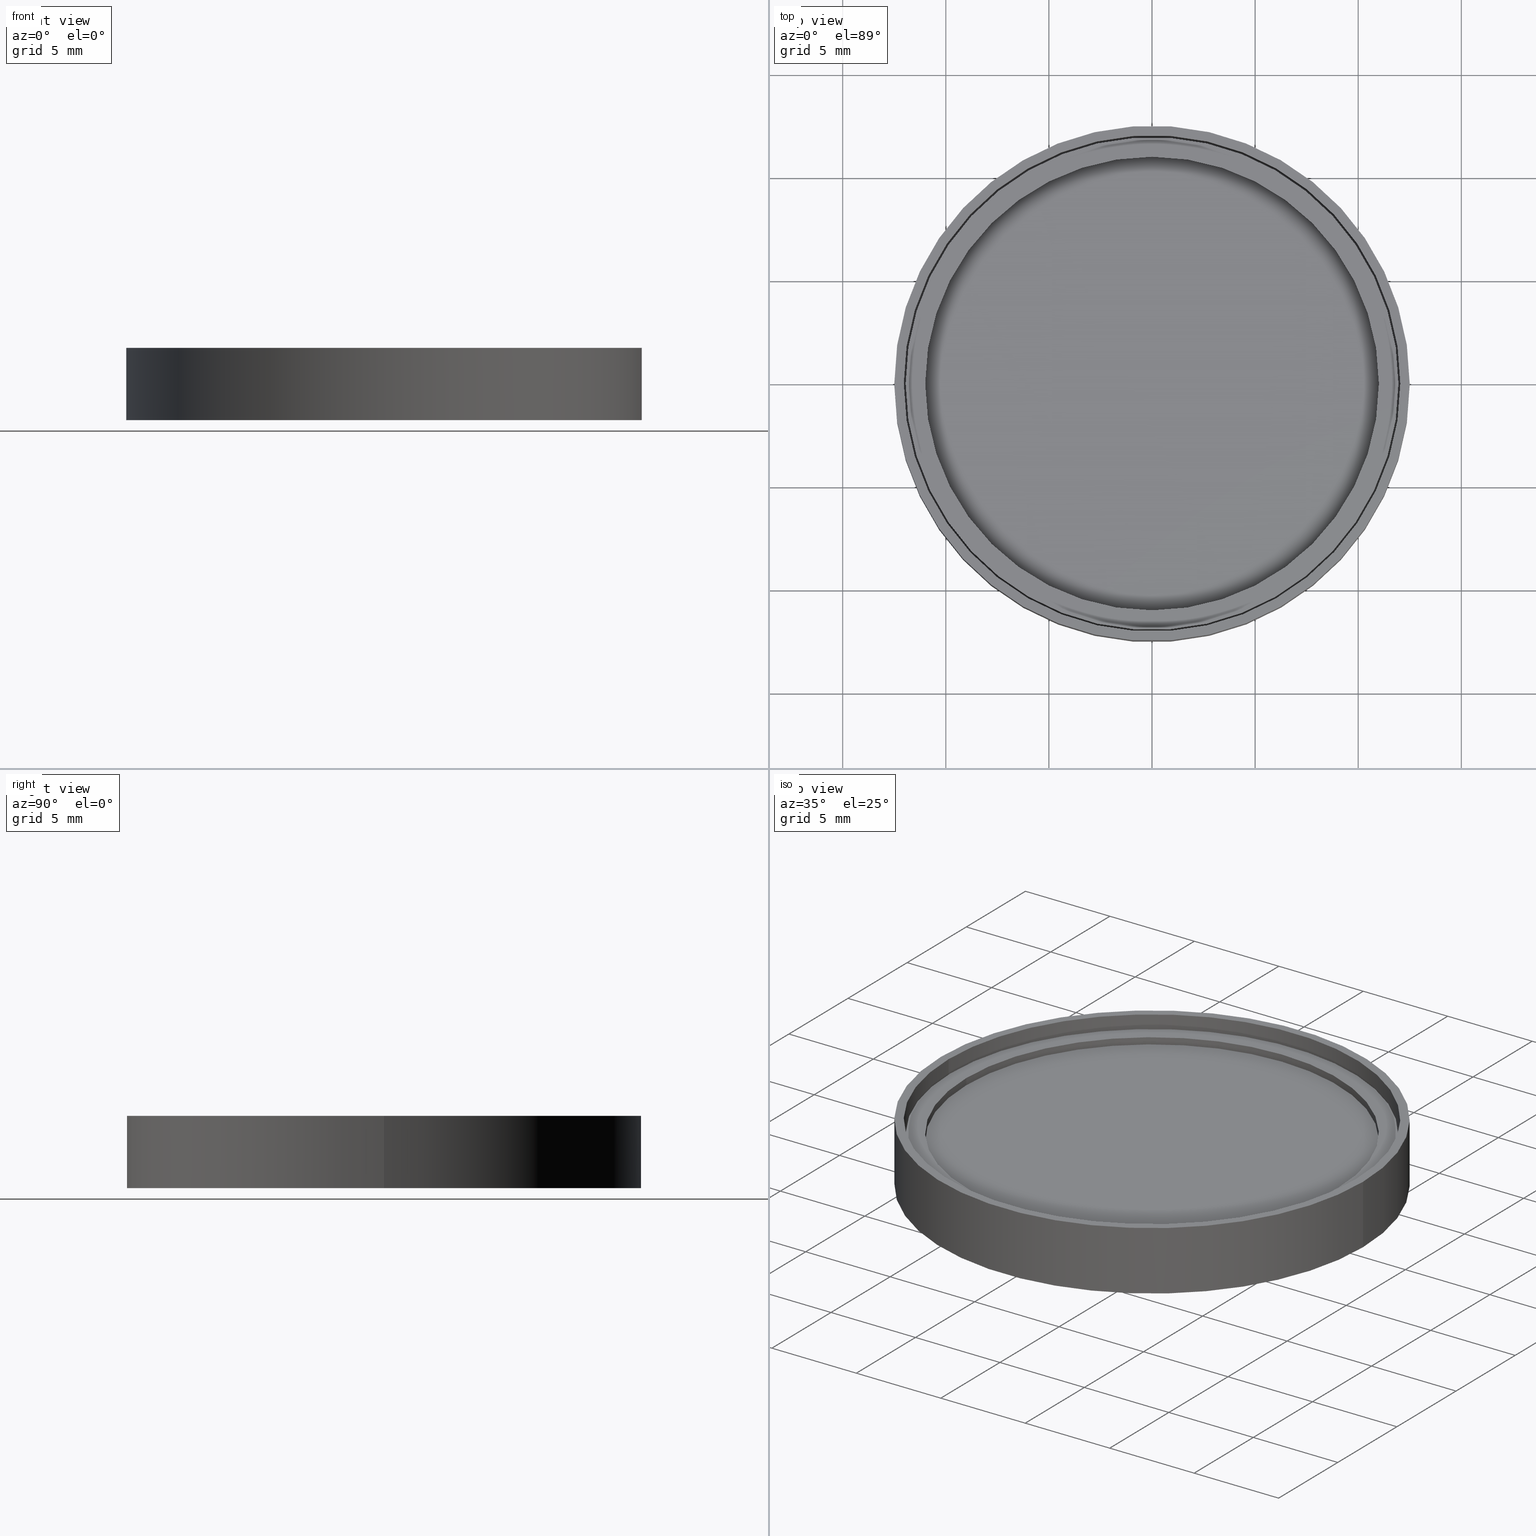
[diagram: canonical four-view strip — front | top / right | iso, engineering-drawing reading convention]
A machine part, canonical four-view strip (front | top / right | iso — engineering-drawing reading convention). The complete STEP part file that produces these views, byte-faithful:
ISO-10303-21;
HEADER;
FILE_DESCRIPTION (( 'STEP AP214' ),
    '1' );
FILE_NAME ('25mm 3.5mm 22mm.STEP',
    '2020-03-11T02:51:51',
    ( '' ),
    ( '' ),
    'SwSTEP 2.0',
    'SolidWorks 2016',
    '' );
FILE_SCHEMA (( 'AUTOMOTIVE_DESIGN' ));
ENDSEC;

DATA;
#1 =( NAMED_UNIT ( * ) SI_UNIT ( $, .STERADIAN. ) SOLID_ANGLE_UNIT ( ) );
#2 = ADVANCED_FACE ( 'NONE', ( #1009, #538 ), #868, .F. ) ;
#3 = CARTESIAN_POINT ( 'NONE',  ( 11.94999999999999900, -4.665750208063244300E-017, 0.3810000000000011200 ) ) ;
#4 =( NAMED_UNIT ( * ) PLANE_ANGLE_UNIT ( ) SI_UNIT ( $, .RADIAN. ) );
#5 = DIRECTION ( 'NONE',  ( 0.0000000000000000000, 0.0000000000000000000, 1.000000000000000000 ) ) ;
#6 = LINE ( 'NONE', #69, #899 ) ;
#7 = VERTEX_POINT ( 'NONE', #27 ) ;
#8 = ORIENTED_EDGE ( 'NONE', *, *, #262, .T. ) ;
#9 = SURFACE_STYLE_USAGE ( .BOTH. , #394 ) ;
#10 = UNCERTAINTY_MEASURE_WITH_UNIT (LENGTH_MEASURE( 1.000000000000000100E-005 ), #679, 'distance_accuracy_value', 'NONE');
#11 =( NAMED_UNIT ( * ) SI_UNIT ( $, .STERADIAN. ) SOLID_ANGLE_UNIT ( ) );
#12 = CARTESIAN_POINT ( 'NONE',  ( 0.0000000000000000000, 0.0000000000000000000, 0.0000000000000000000 ) ) ;
#13 = CYLINDRICAL_SURFACE ( 'NONE', #606, 12.03960000000000200 ) ;
#14 = PRESENTATION_LAYER_ASSIGNMENT (  '', '', ( #114 ) ) ;
#15 = FILL_AREA_STYLE_COLOUR ( '', #675 ) ;
#16 = SURFACE_SIDE_STYLE ('',( #990 ) ) ;
#17 = STYLED_ITEM ( 'NONE', ( #596 ), #80 ) ;
#18 = PRESENTATION_LAYER_ASSIGNMENT (  '', '', ( #458 ) ) ;
#19 = CARTESIAN_POINT ( 'NONE',  ( 10.60450000000000000, 1.298676698155810700E-015, 0.3810000000000000100 ) ) ;
#20 = ORIENTED_EDGE ( 'NONE', *, *, #963, .F. ) ;
#21 = ORIENTED_EDGE ( 'NONE', *, *, #385, .F. ) ;
#22 = SURFACE_STYLE_FILL_AREA ( #649 ) ;
#23 = APPLICATION_CONTEXT ( 'automotive_design' ) ;
#24 = UNCERTAINTY_MEASURE_WITH_UNIT (LENGTH_MEASURE( 1.000000000000000100E-005 ), #562, 'distance_accuracy_value', 'NONE');
#25 = CARTESIAN_POINT ( 'NONE',  ( 0.0000000000000000000, -4.665750208063244300E-017, 2.381000000000001100 ) ) ;
#26 = VERTEX_POINT ( 'NONE', #303 ) ;
#27 = CARTESIAN_POINT ( 'NONE',  ( 12.10309999999999800, 0.0000000000000000000, 0.6857999999999999700 ) ) ;
#28 = AXIS2_PLACEMENT_3D ( 'NONE', #386, #1024, #945 ) ;
#29 = ORIENTED_EDGE ( 'NONE', *, *, #383, .F. ) ;
#30 = PLANE ( 'NONE',  #815 ) ;
#31 = SURFACE_SIDE_STYLE ('',( #291 ) ) ;
#32 =( NAMED_UNIT ( * ) SI_UNIT ( $, .STERADIAN. ) SOLID_ANGLE_UNIT ( ) );
#33 = COLOUR_RGB ( '',1.000000000000000000, 1.000000000000000000, 1.000000000000000000 ) ;
#34 = AXIS2_PLACEMENT_3D ( 'NONE', #307, #622, #1026 ) ;
#35 = SURFACE_STYLE_USAGE ( .BOTH. , #182 ) ;
#36 =( NAMED_UNIT ( * ) SI_UNIT ( $, .STERADIAN. ) SOLID_ANGLE_UNIT ( ) );
#37 = CARTESIAN_POINT ( 'NONE',  ( 11.94999999999999900, -4.665750208063244300E-017, 0.3810000000000011200 ) ) ;
#38 = VERTEX_POINT ( 'NONE', #498 ) ;
#39 =( LENGTH_UNIT ( ) NAMED_UNIT ( * ) SI_UNIT ( .MILLI., .METRE. ) );
#40 = ORIENTED_EDGE ( 'NONE', *, *, #739, .F. ) ;
#41 = VECTOR ( 'NONE', #470, 1000.000000000000000 ) ;
#42 =( GEOMETRIC_REPRESENTATION_CONTEXT ( 3 ) GLOBAL_UNCERTAINTY_ASSIGNED_CONTEXT ( ( #964 ) ) GLOBAL_UNIT_ASSIGNED_CONTEXT ( ( #39, #528, #36 ) ) REPRESENTATION_CONTEXT ( 'NONE', 'WORKASPACE' ) );
#43 = EDGE_CURVE ( 'NONE', #511, #426, #381, .T. ) ;
#44 =( NAMED_UNIT ( * ) SI_UNIT ( $, .STERADIAN. ) SOLID_ANGLE_UNIT ( ) );
#45 = SURFACE_STYLE_FILL_AREA ( #646 ) ;
#46 = PRESENTATION_LAYER_ASSIGNMENT (  '', '', ( #948 ) ) ;
#47 = SURFACE_STYLE_USAGE ( .BOTH. , #1004 ) ;
#48 = AXIS2_PLACEMENT_3D ( 'NONE', #942, #59, #304 ) ;
#49 = ORIENTED_EDGE ( 'NONE', *, *, #739, .T. ) ;
#50 = FACE_OUTER_BOUND ( 'NONE', #287, .T. ) ;
#51 = ORIENTED_EDGE ( 'NONE', *, *, #399, .T. ) ;
#52 = SURFACE_STYLE_FILL_AREA ( #222 ) ;
#53 = PRESENTATION_STYLE_ASSIGNMENT (( #563 ) ) ;
#54 = FILL_AREA_STYLE_COLOUR ( '', #978 ) ;
#55 = COLOUR_RGB ( '',1.000000000000000000, 1.000000000000000000, 1.000000000000000000 ) ;
#56 = PRESENTATION_STYLE_ASSIGNMENT (( #837 ) ) ;
#57 = DIRECTION ( 'NONE',  ( -0.0000000000000000000, -0.0000000000000000000, -1.000000000000000000 ) ) ;
#58 = CIRCLE ( 'NONE', #533, 11.93799999999999700 ) ;
#59 = DIRECTION ( 'NONE',  ( -0.0000000000000000000, -0.0000000000000000000, -1.000000000000000000 ) ) ;
#60 = AXIS2_PLACEMENT_3D ( 'NONE', #841, #445, #360 ) ;
#61 = PRODUCT_DEFINITION_CONTEXT ( 'detailed design', #583, 'design' ) ;
#62 =( NAMED_UNIT ( * ) PLANE_ANGLE_UNIT ( ) SI_UNIT ( $, .RADIAN. ) );
#63 = AXIS2_PLACEMENT_3D ( 'NONE', #547, #782, #442 ) ;
#64 = ORIENTED_EDGE ( 'NONE', *, *, #273, .F. ) ;
#65 =( GEOMETRIC_REPRESENTATION_CONTEXT ( 3 ) GLOBAL_UNCERTAINTY_ASSIGNED_CONTEXT ( ( #257 ) ) GLOBAL_UNIT_ASSIGNED_CONTEXT ( ( #685, #759, #282 ) ) REPRESENTATION_CONTEXT ( 'NONE', 'WORKASPACE' ) );
#66 = UNCERTAINTY_MEASURE_WITH_UNIT (LENGTH_MEASURE( 1.000000000000000100E-005 ), #357, 'distance_accuracy_value', 'NONE');
#67 = FILL_AREA_STYLE_COLOUR ( '', #903 ) ;
#68 = ADVANCED_FACE ( 'NONE', ( #833, #909 ), #93, .T. ) ;
#69 = CARTESIAN_POINT ( 'NONE',  ( 11.93799999999999700, -2.915787728451079300E-016, 2.380999999999999300 ) ) ;
#70 = DIRECTION ( 'NONE',  ( 1.000000000000000000, 0.0000000000000000000, 0.0000000000000000000 ) ) ;
#71 =( NAMED_UNIT ( * ) PLANE_ANGLE_UNIT ( ) SI_UNIT ( $, .RADIAN. ) );
#72 = ADVANCED_FACE ( 'NONE', ( #701 ), #107, .F. ) ;
#73 = DIRECTION ( 'NONE',  ( -0.0000000000000000000, -0.0000000000000000000, -1.000000000000000000 ) ) ;
#74 = DIRECTION ( 'NONE',  ( -1.000000000000000000, 0.0000000000000000000, 0.0000000000000000000 ) ) ;
#75 = DIRECTION ( 'NONE',  ( -1.000000000000000000, 0.0000000000000000000, 0.0000000000000000000 ) ) ;
#76 = VERTEX_POINT ( 'NONE', #713 ) ;
#77 = VERTEX_POINT ( 'NONE', #88 ) ;
#78 = SURFACE_STYLE_FILL_AREA ( #1010 ) ;
#79 = CARTESIAN_POINT ( 'NONE',  ( -12.49679999999999900, 0.0000000000000000000, 3.500000000000000000 ) ) ;
#80 = ADVANCED_FACE ( 'NONE', ( #748 ), #13, .F. ) ;
#81 = COLOUR_RGB ( '',1.000000000000000000, 1.000000000000000000, 1.000000000000000000 ) ;
#82 = CARTESIAN_POINT ( 'NONE',  ( 11.00000000000000000, 0.0000000000000000000, 2.761999999999998700 ) ) ;
#83 =( LENGTH_UNIT ( ) NAMED_UNIT ( * ) SI_UNIT ( .MILLI., .METRE. ) );
#84 = MECHANICAL_DESIGN_GEOMETRIC_PRESENTATION_REPRESENTATION (  '', ( #404 ), #353 ) ;
#85 =( NAMED_UNIT ( * ) PLANE_ANGLE_UNIT ( ) SI_UNIT ( $, .RADIAN. ) );
#86 = AXIS2_PLACEMENT_3D ( 'NONE', #395, #550, #150 ) ;
#87 = UNCERTAINTY_MEASURE_WITH_UNIT (LENGTH_MEASURE( 1.000000000000000100E-005 ), #317, 'distance_accuracy_value', 'NONE');
#88 = CARTESIAN_POINT ( 'NONE',  ( -11.94999999999999900, 1.416795422900454500E-015, 0.3810000000000011200 ) ) ;
#89 = AXIS2_PLACEMENT_3D ( 'NONE', #814, #329, #968 ) ;
#90 = DIRECTION ( 'NONE',  ( 0.0000000000000000000, 0.0000000000000000000, -1.000000000000000000 ) ) ;
#91 = ORIENTED_EDGE ( 'NONE', *, *, #131, .T. ) ;
#92 = ORIENTED_EDGE ( 'NONE', *, *, #192, .F. ) ;
#93 = PLANE ( 'NONE',  #930 ) ;
#94 = SURFACE_STYLE_FILL_AREA ( #969 ) ;
#95 = SURFACE_SIDE_STYLE ('',( #290 ) ) ;
#96 = EDGE_CURVE ( 'NONE', #178, #539, #784, .T. ) ;
#97 = STYLED_ITEM ( 'NONE', ( #827 ), #217 ) ;
#98 = FILL_AREA_STYLE_COLOUR ( '', #565 ) ;
#99 = FACE_OUTER_BOUND ( 'NONE', #988, .T. ) ;
#100 = FACE_OUTER_BOUND ( 'NONE', #202, .T. ) ;
#101 = STYLED_ITEM ( 'NONE', ( #239 ), #719 ) ;
#102 = CARTESIAN_POINT ( 'NONE',  ( -12.10309999999999800, 1.482202267476032900E-015, 0.6857999999999999700 ) ) ;
#103 = VERTEX_POINT ( 'NONE', #947 ) ;
#104 = DIRECTION ( 'NONE',  ( 1.000000000000000000, 0.0000000000000000000, 0.0000000000000000000 ) ) ;
#105 = CIRCLE ( 'NONE', #227, 12.03960000000000200 ) ;
#106 = COLOUR_RGB ( '',1.000000000000000000, 1.000000000000000000, 1.000000000000000000 ) ;
#107 = CYLINDRICAL_SURFACE ( 'NONE', #561, 12.10309999999999800 ) ;
#108 = EDGE_CURVE ( 'NONE', #828, #902, #58, .T. ) ;
#109 = FILL_AREA_STYLE ('',( #352 ) ) ;
#110 = UNCERTAINTY_MEASURE_WITH_UNIT (LENGTH_MEASURE( 1.000000000000000100E-005 ), #635, 'distance_accuracy_value', 'NONE');
#111 = CYLINDRICAL_SURFACE ( 'NONE', #475, 11.94999999999999900 ) ;
#112 = PRODUCT_DEFINITION_SHAPE ( 'NONE', 'NONE',  #886 ) ;
#113 = COLOUR_RGB ( '',1.000000000000000000, 1.000000000000000000, 1.000000000000000000 ) ;
#114 = STYLED_ITEM ( 'NONE', ( #706 ), #857 ) ;
#115 = EDGE_LOOP ( 'NONE', ( #492, #913 ) ) ;
#116 =( NAMED_UNIT ( * ) SI_UNIT ( $, .STERADIAN. ) SOLID_ANGLE_UNIT ( ) );
#117 = ORIENTED_EDGE ( 'NONE', *, *, #651, .T. ) ;
#118 = CYLINDRICAL_SURFACE ( 'NONE', #664, 10.60450000000000000 ) ;
#119 = DIRECTION ( 'NONE',  ( 1.000000000000000000, 0.0000000000000000000, -0.0000000000000000000 ) ) ;
#120 =( GEOMETRIC_REPRESENTATION_CONTEXT ( 3 ) GLOBAL_UNCERTAINTY_ASSIGNED_CONTEXT ( ( #875 ) ) GLOBAL_UNIT_ASSIGNED_CONTEXT ( ( #934, #302, #218 ) ) REPRESENTATION_CONTEXT ( 'NONE', 'WORKASPACE' ) );
#121 = DIRECTION ( 'NONE',  ( 0.0000000000000000000, 0.0000000000000000000, 1.000000000000000000 ) ) ;
#122 = FACE_OUTER_BOUND ( 'NONE', #479, .T. ) ;
#123 = EDGE_LOOP ( 'NONE', ( #578, #187, #826, #390 ) ) ;
#124 = AXIS2_PLACEMENT_3D ( 'NONE', #148, #623, #521 ) ;
#125 = SURFACE_STYLE_FILL_AREA ( #207 ) ;
#126 = PLANE ( 'NONE',  #632 ) ;
#127 = ORIENTED_EDGE ( 'NONE', *, *, #672, .F. ) ;
#128 = EDGE_CURVE ( 'NONE', #902, #828, #214, .T. ) ;
#129 = SURFACE_STYLE_FILL_AREA ( #520 ) ;
#130 = FACE_OUTER_BOUND ( 'NONE', #977, .T. ) ;
#131 = EDGE_CURVE ( 'NONE', #77, #627, #621, .T. ) ;
#132 = AXIS2_PLACEMENT_3D ( 'NONE', #737, #180, #582 ) ;
#133 = STYLED_ITEM ( 'NONE', ( #56 ), #540 ) ;
#134 = AXIS2_PLACEMENT_3D ( 'NONE', #216, #220, #301 ) ;
#135 = EDGE_LOOP ( 'NONE', ( #590, #392 ) ) ;
#136 = CIRCLE ( 'NONE', #382, 11.00000000000000000 ) ;
#137 = ORIENTED_EDGE ( 'NONE', *, *, #541, .F. ) ;
#138 = LINE ( 'NONE', #879, #542 ) ;
#139 =( LENGTH_UNIT ( ) NAMED_UNIT ( * ) SI_UNIT ( .MILLI., .METRE. ) );
#140 = ORIENTED_EDGE ( 'NONE', *, *, #164, .T. ) ;
#141 = DIRECTION ( 'NONE',  ( 1.000000000000000000, 0.0000000000000000000, 0.0000000000000000000 ) ) ;
#142 = ADVANCED_FACE ( 'NONE', ( #411 ), #775, .T. ) ;
#143 = CARTESIAN_POINT ( 'NONE',  ( 0.0000000000000000000, 0.0000000000000000000, 0.0000000000000000000 ) ) ;
#144 = MANIFOLD_SOLID_BREP ( '�г�-����1', #271 ) ;
#145 = FILL_AREA_STYLE_COLOUR ( '', #342 ) ;
#146 = EDGE_CURVE ( 'NONE', #341, #443, #197, .T. ) ;
#147 = ADVANCED_FACE ( 'NONE', ( #99 ), #736, .F. ) ;
#148 = CARTESIAN_POINT ( 'NONE',  ( 0.0000000000000000000, 0.0000000000000000000, -28.73169837220808300 ) ) ;
#149 = AXIS2_PLACEMENT_3D ( 'NONE', #437, #184, #104 ) ;
#150 = DIRECTION ( 'NONE',  ( 1.000000000000000000, 0.0000000000000000000, 0.0000000000000000000 ) ) ;
#151 = CIRCLE ( 'NONE', #1011, 10.60450000000000000 ) ;
#152 = SURFACE_STYLE_USAGE ( .BOTH. , #631 ) ;
#153 = VERTEX_POINT ( 'NONE', #867 ) ;
#154 = FACE_BOUND ( 'NONE', #808, .T. ) ;
#155 = ORIENTED_EDGE ( 'NONE', *, *, #332, .F. ) ;
#156 = DIRECTION ( 'NONE',  ( 1.000000000000000000, 0.0000000000000000000, 0.0000000000000000000 ) ) ;
#157 = STYLED_ITEM ( 'NONE', ( #1031 ), #723 ) ;
#158 =( LENGTH_UNIT ( ) NAMED_UNIT ( * ) SI_UNIT ( .MILLI., .METRE. ) );
#159 = SURFACE_STYLE_USAGE ( .BOTH. , #637 ) ;
#160 = SURFACE_STYLE_USAGE ( .BOTH. , #324 ) ;
#161 = FILL_AREA_STYLE_COLOUR ( '', #848 ) ;
#162 = DIRECTION ( 'NONE',  ( 0.0000000000000000000, 0.0000000000000000000, -1.000000000000000000 ) ) ;
#163 = ADVANCED_FACE ( 'NONE', ( #463 ), #111, .T. ) ;
#164 = EDGE_CURVE ( 'NONE', #511, #326, #208, .T. ) ;
#165 = CIRCLE ( 'NONE', #132, 11.00000000000000000 ) ;
#166 =( LENGTH_UNIT ( ) NAMED_UNIT ( * ) SI_UNIT ( .MILLI., .METRE. ) );
#167 = ORIENTED_EDGE ( 'NONE', *, *, #633, .T. ) ;
#168 = CARTESIAN_POINT ( 'NONE',  ( 0.0000000000000000000, -2.915787728451079300E-016, 2.380999999999999300 ) ) ;
#169 = ORIENTED_EDGE ( 'NONE', *, *, #919, .T. ) ;
#170 = CYLINDRICAL_SURFACE ( 'NONE', #388, 10.60450000000000000 ) ;
#171 = VERTEX_POINT ( 'NONE', #915 ) ;
#172 = FILL_AREA_STYLE ('',( #883 ) ) ;
#173 = AXIS2_PLACEMENT_3D ( 'NONE', #927, #610, #285 ) ;
#174 = EDGE_CURVE ( 'NONE', #363, #76, #776, .T. ) ;
#175 = PRESENTATION_LAYER_ASSIGNMENT (  '', '', ( #478 ) ) ;
#176 = AXIS2_PLACEMENT_3D ( 'NONE', #228, #457, #141 ) ;
#177 =( NAMED_UNIT ( * ) PLANE_ANGLE_UNIT ( ) SI_UNIT ( $, .RADIAN. ) );
#178 = VERTEX_POINT ( 'NONE', #384 ) ;
#179 = ORIENTED_EDGE ( 'NONE', *, *, #651, .F. ) ;
#180 = DIRECTION ( 'NONE',  ( -0.0000000000000000000, -0.0000000000000000000, -1.000000000000000000 ) ) ;
#181 = EDGE_CURVE ( 'NONE', #443, #341, #151, .T. ) ;
#182 = SURFACE_SIDE_STYLE ('',( #682 ) ) ;
#183 = DIRECTION ( 'NONE',  ( 0.0000000000000000000, 0.0000000000000000000, 1.000000000000000000 ) ) ;
#184 = DIRECTION ( 'NONE',  ( -0.0000000000000000000, -0.0000000000000000000, -1.000000000000000000 ) ) ;
#185 = PRESENTATION_LAYER_ASSIGNMENT (  '', '', ( #419 ) ) ;
#186 = PRESENTATION_STYLE_ASSIGNMENT (( #263 ) ) ;
#187 = ORIENTED_EDGE ( 'NONE', *, *, #611, .T. ) ;
#188 = UNCERTAINTY_MEASURE_WITH_UNIT (LENGTH_MEASURE( 1.000000000000000100E-005 ), #267, 'distance_accuracy_value', 'NONE');
#189 = VERTEX_POINT ( 'NONE', #358 ) ;
#190 = SURFACE_STYLE_FILL_AREA ( #389 ) ;
#191 = ORIENTED_EDGE ( 'NONE', *, *, #690, .T. ) ;
#192 = EDGE_CURVE ( 'NONE', #103, #480, #535, .T. ) ;
#193 = SURFACE_STYLE_FILL_AREA ( #555 ) ;
#194 = CARTESIAN_POINT ( 'NONE',  ( -12.49679999999999900, 0.0000000000000000000, 0.0000000000000000000 ) ) ;
#195 = APPLICATION_PROTOCOL_DEFINITION ( 'draft international standard', 'automotive_design', 1998, #583 ) ;
#196 = CARTESIAN_POINT ( 'NONE',  ( 12.03960000000000200, 1.474425760301447600E-015, 0.6858000000000000800 ) ) ;
#197 = CIRCLE ( 'NONE', #870, 10.60450000000000000 ) ;
#198 = CARTESIAN_POINT ( 'NONE',  ( 0.0000000000000000000, 0.0000000000000000000, 0.6857999999999999700 ) ) ;
#199 = MECHANICAL_DESIGN_GEOMETRIC_PRESENTATION_REPRESENTATION (  '', ( #312 ), #507 ) ;
#200 = ORIENTED_EDGE ( 'NONE', *, *, #308, .T. ) ;
#201 = SURFACE_STYLE_FILL_AREA ( #597 ) ;
#202 = EDGE_LOOP ( 'NONE', ( #778, #225, #429, #1002 ) ) ;
#203 = SURFACE_STYLE_FILL_AREA ( #320 ) ;
#204 = FILL_AREA_STYLE_COLOUR ( '', #465 ) ;
#205 =( NAMED_UNIT ( * ) PLANE_ANGLE_UNIT ( ) SI_UNIT ( $, .RADIAN. ) );
#206 = PRESENTATION_LAYER_ASSIGNMENT (  '', '', ( #365 ) ) ;
#207 = FILL_AREA_STYLE ('',( #204 ) ) ;
#208 = LINE ( 'NONE', #1021, #822 ) ;
#209 = LINE ( 'NONE', #943, #1008 ) ;
#210 = EDGE_LOOP ( 'NONE', ( #361, #256 ) ) ;
#211 = SURFACE_SIDE_STYLE ('',( #52 ) ) ;
#212 = CLOSED_SHELL ( 'NONE', ( #636, #557, #80, #560, #142, #68, #857, #719, #723, #638, #546, #72 ) ) ;
#213 = DIRECTION ( 'NONE',  ( -0.0000000000000000000, -0.0000000000000000000, -1.000000000000000000 ) ) ;
#214 = CIRCLE ( 'NONE', #647, 11.93799999999999700 ) ;
#215 = ADVANCED_FACE ( 'NONE', ( #449 ), #509, .F. ) ;
#216 = CARTESIAN_POINT ( 'NONE',  ( 0.0000000000000000000, 0.0000000000000000000, -28.73169837220808300 ) ) ;
#217 = ADVANCED_BREP_SHAPE_REPRESENTATION ( '25mm 3.5mm 22mm', ( #368, #144, #581, #655 ), #260 ) ;
#218 =( NAMED_UNIT ( * ) SI_UNIT ( $, .STERADIAN. ) SOLID_ANGLE_UNIT ( ) );
#219 = STYLED_ITEM ( 'NONE', ( #696 ), #878 ) ;
#220 = DIRECTION ( 'NONE',  ( -0.0000000000000000000, -0.0000000000000000000, 1.000000000000000000 ) ) ;
#221 = EDGE_CURVE ( 'NONE', #539, #178, #974, .T. ) ;
#222 = FILL_AREA_STYLE ('',( #67 ) ) ;
#223 = SURFACE_STYLE_FILL_AREA ( #831 ) ;
#224 = PRESENTATION_LAYER_ASSIGNMENT (  '', '', ( #17 ) ) ;
#225 = ORIENTED_EDGE ( 'NONE', *, *, #633, .F. ) ;
#226 = SURFACE_SIDE_STYLE ('',( #266 ) ) ;
#227 = AXIS2_PLACEMENT_3D ( 'NONE', #788, #57, #859 ) ;
#228 = CARTESIAN_POINT ( 'NONE',  ( 0.0000000000000000000, -2.915787728451079300E-016, 2.761999999999998700 ) ) ;
#229 = CARTESIAN_POINT ( 'NONE',  ( -11.00000000000000000, 1.347111479062088400E-015, 2.381000000000001100 ) ) ;
#230 = CARTESIAN_POINT ( 'NONE',  ( 0.0000000000000000000, 0.0000000000000000000, 0.0000000000000000000 ) ) ;
#231 = CARTESIAN_POINT ( 'NONE',  ( 0.0000000000000000000, 0.0000000000000000000, 0.0000000000000000000 ) ) ;
#232 = CYLINDRICAL_SURFACE ( 'NONE', #134, 11.00000000000000000 ) ;
#233 = PLANE ( 'NONE',  #766 ) ;
#234 = ADVANCED_FACE ( 'NONE', ( #100 ), #888, .F. ) ;
#235 = CARTESIAN_POINT ( 'NONE',  ( 12.10309999999999800, 0.0000000000000000000, 0.3810000000000000100 ) ) ;
#236 = ORIENTED_EDGE ( 'NONE', *, *, #372, .T. ) ;
#237 = FACE_OUTER_BOUND ( 'NONE', #589, .T. ) ;
#238 = ORIENTED_EDGE ( 'NONE', *, *, #932, .T. ) ;
#239 = PRESENTATION_STYLE_ASSIGNMENT (( #626 ) ) ;
#240 = FILL_AREA_STYLE ('',( #720 ) ) ;
#241 = ADVANCED_FACE ( 'NONE', ( #122 ), #232, .F. ) ;
#242 = AXIS2_PLACEMENT_3D ( 'NONE', #12, #559, #642 ) ;
#243 =( NAMED_UNIT ( * ) PLANE_ANGLE_UNIT ( ) SI_UNIT ( $, .RADIAN. ) );
#244 = CARTESIAN_POINT ( 'NONE',  ( 0.0000000000000000000, 0.0000000000000000000, 0.0000000000000000000 ) ) ;
#245 = DIRECTION ( 'NONE',  ( -0.0000000000000000000, -0.0000000000000000000, -1.000000000000000000 ) ) ;
#246 = PRESENTATION_STYLE_ASSIGNMENT (( #970 ) ) ;
#247 = AXIS2_PLACEMENT_3D ( 'NONE', #1020, #162, #747 ) ;
#248 = EDGE_CURVE ( 'NONE', #902, #313, #6, .T. ) ;
#249 = SURFACE_SIDE_STYLE ('',( #448 ) ) ;
#250 =( GEOMETRIC_REPRESENTATION_CONTEXT ( 3 ) GLOBAL_UNCERTAINTY_ASSIGNED_CONTEXT ( ( #333 ) ) GLOBAL_UNIT_ASSIGNED_CONTEXT ( ( #620, #380, #367 ) ) REPRESENTATION_CONTEXT ( 'NONE', 'WORKASPACE' ) );
#251 = CARTESIAN_POINT ( 'NONE',  ( 0.0000000000000000000, 0.0000000000000000000, 0.3810000000000011200 ) ) ;
#252 = PRESENTATION_STYLE_ASSIGNMENT (( #295 ) ) ;
#253 = CARTESIAN_POINT ( 'NONE',  ( 0.0000000000000000000, 0.0000000000000000000, 0.0000000000000000000 ) ) ;
#254 = ORIENTED_EDGE ( 'NONE', *, *, #146, .T. ) ;
#255 = CIRCLE ( 'NONE', #548, 12.03960000000000200 ) ;
#256 = ORIENTED_EDGE ( 'NONE', *, *, #96, .F. ) ;
#257 = UNCERTAINTY_MEASURE_WITH_UNIT (LENGTH_MEASURE( 1.000000000000000100E-005 ), #685, 'distance_accuracy_value', 'NONE');
#258 = MECHANICAL_DESIGN_GEOMETRIC_PRESENTATION_REPRESENTATION (  '', ( #693 ), #359 ) ;
#259 = PLANE ( 'NONE',  #517 ) ;
#260 =( GEOMETRIC_REPRESENTATION_CONTEXT ( 3 ) GLOBAL_UNCERTAINTY_ASSIGNED_CONTEXT ( ( #982 ) ) GLOBAL_UNIT_ASSIGNED_CONTEXT ( ( #513, #428, #32 ) ) REPRESENTATION_CONTEXT ( 'NONE', 'WORKASPACE' ) );
#261 = EDGE_CURVE ( 'NONE', #464, #480, #209, .T. ) ;
#262 = EDGE_CURVE ( 'NONE', #768, #26, #925, .T. ) ;
#263 = SURFACE_STYLE_USAGE ( .BOTH. , #673 ) ;
#264 = MECHANICAL_DESIGN_GEOMETRIC_PRESENTATION_REPRESENTATION (  '', ( #157 ), #551 ) ;
#265 = STYLED_ITEM ( 'NONE', ( #704 ), #2 ) ;
#266 = SURFACE_STYLE_FILL_AREA ( #687 ) ;
#267 =( LENGTH_UNIT ( ) NAMED_UNIT ( * ) SI_UNIT ( .MILLI., .METRE. ) );
#268 = ORIENTED_EDGE ( 'NONE', *, *, #322, .T. ) ;
#269 = FACE_OUTER_BOUND ( 'NONE', #753, .T. ) ;
#270 = CIRCLE ( 'NONE', #247, 12.10309999999999800 ) ;
#271 = CLOSED_SHELL ( 'NONE', ( #241, #484, #461, #540, #936, #147 ) ) ;
#272 = CARTESIAN_POINT ( 'NONE',  ( 0.0000000000000000000, 0.0000000000000000000, 0.3810000000000000100 ) ) ;
#273 = EDGE_CURVE ( 'NONE', #792, #629, #587, .T. ) ;
#274 = EDGE_CURVE ( 'NONE', #153, #103, #628, .T. ) ;
#275 = DIRECTION ( 'NONE',  ( -0.0000000000000000000, -0.0000000000000000000, -1.000000000000000000 ) ) ;
#276 = PRESENTATION_LAYER_ASSIGNMENT (  '', '', ( #219 ) ) ;
#277 = CARTESIAN_POINT ( 'NONE',  ( 0.0000000000000000000, -2.915787728451079300E-016, 2.380999999999999300 ) ) ;
#278 = EDGE_LOOP ( 'NONE', ( #566, #989 ) ) ;
#279 = ORIENTED_EDGE ( 'NONE', *, *, #1015, .F. ) ;
#280 = ORIENTED_EDGE ( 'NONE', *, *, #308, .F. ) ;
#281 = EDGE_CURVE ( 'NONE', #418, #7, #270, .T. ) ;
#282 =( NAMED_UNIT ( * ) SI_UNIT ( $, .STERADIAN. ) SOLID_ANGLE_UNIT ( ) );
#283 = DIRECTION ( 'NONE',  ( 1.000000000000000000, 0.0000000000000000000, 0.0000000000000000000 ) ) ;
#284 = MECHANICAL_DESIGN_GEOMETRIC_PRESENTATION_REPRESENTATION (  '', ( #786 ), #1007 ) ;
#285 = DIRECTION ( 'NONE',  ( 1.000000000000000000, 0.0000000000000000000, 0.0000000000000000000 ) ) ;
#286 = DIRECTION ( 'NONE',  ( 0.0000000000000000000, 0.0000000000000000000, 1.000000000000000000 ) ) ;
#287 = EDGE_LOOP ( 'NONE', ( #938, #975 ) ) ;
#288 = ORIENTED_EDGE ( 'NONE', *, *, #332, .T. ) ;
#289 = CIRCLE ( 'NONE', #607, 11.00000000000000000 ) ;
#290 = SURFACE_STYLE_FILL_AREA ( #877 ) ;
#291 = SURFACE_STYLE_FILL_AREA ( #678 ) ;
#292 = FILL_AREA_STYLE_COLOUR ( '', #106 ) ;
#293 = STYLED_ITEM ( 'NONE', ( #53 ), #546 ) ;
#294 = UNCERTAINTY_MEASURE_WITH_UNIT (LENGTH_MEASURE( 1.000000000000000100E-005 ), #882, 'distance_accuracy_value', 'NONE');
#295 = SURFACE_STYLE_USAGE ( .BOTH. , #226 ) ;
#296 = ORIENTED_EDGE ( 'NONE', *, *, #1027, .F. ) ;
#297 = AXIS2_PLACEMENT_3D ( 'NONE', #1022, #375, #74 ) ;
#298 = ORIENTED_EDGE ( 'NONE', *, *, #928, .T. ) ;
#299 = CIRCLE ( 'NONE', #618, 12.10309999999999800 ) ;
#300 = ADVANCED_FACE ( 'NONE', ( #237 ), #30, .T. ) ;
#301 = DIRECTION ( 'NONE',  ( 1.000000000000000000, 0.0000000000000000000, 0.0000000000000000000 ) ) ;
#302 =( NAMED_UNIT ( * ) PLANE_ANGLE_UNIT ( ) SI_UNIT ( $, .RADIAN. ) );
#303 = CARTESIAN_POINT ( 'NONE',  ( 12.49679999999999900, 1.530416611958464300E-015, 3.500000000000000000 ) ) ;
#304 = DIRECTION ( 'NONE',  ( 1.000000000000000000, 0.0000000000000000000, 0.0000000000000000000 ) ) ;
#305 = MECHANICAL_DESIGN_GEOMETRIC_PRESENTATION_REPRESENTATION (  '', ( #114 ), #42 ) ;
#306 = SURFACE_SIDE_STYLE ('',( #22 ) ) ;
#307 = CARTESIAN_POINT ( 'NONE',  ( 0.0000000000000000000, -4.665750208063244300E-017, 0.3810000000000011200 ) ) ;
#308 = EDGE_CURVE ( 'NONE', #768, #539, #612, .T. ) ;
#309 = DIRECTION ( 'NONE',  ( 0.0000000000000000000, 0.0000000000000000000, 1.000000000000000000 ) ) ;
#310 = DIRECTION ( 'NONE',  ( 0.0000000000000000000, 0.0000000000000000000, 1.000000000000000000 ) ) ;
#311 = ORIENTED_EDGE ( 'NONE', *, *, #274, .F. ) ;
#312 = STYLED_ITEM ( 'NONE', ( #630 ), #794 ) ;
#313 = VERTEX_POINT ( 'NONE', #897 ) ;
#314 = CIRCLE ( 'NONE', #176, 11.93799999999999700 ) ;
#315 = CARTESIAN_POINT ( 'NONE',  ( -11.93799999999999700, 1.170404575977001900E-015, 2.380999999999999300 ) ) ;
#316 = CIRCLE ( 'NONE', #732, 12.10309999999999800 ) ;
#317 =( LENGTH_UNIT ( ) NAMED_UNIT ( * ) SI_UNIT ( .MILLI., .METRE. ) );
#318 = DIRECTION ( 'NONE',  ( -0.0000000000000000000, -0.0000000000000000000, 1.000000000000000000 ) ) ;
#319 = MECHANICAL_DESIGN_GEOMETRIC_PRESENTATION_REPRESENTATION (  '', ( #478 ), #997 ) ;
#320 = FILL_AREA_STYLE ('',( #54 ) ) ;
#321 = SURFACE_STYLE_USAGE ( .BOTH. , #802 ) ;
#322 = EDGE_CURVE ( 'NONE', #518, #326, #255, .T. ) ;
#323 = DIRECTION ( 'NONE',  ( 0.0000000000000000000, 0.0000000000000000000, 1.000000000000000000 ) ) ;
#324 = SURFACE_SIDE_STYLE ('',( #94 ) ) ;
#325 =( NAMED_UNIT ( * ) SI_UNIT ( $, .STERADIAN. ) SOLID_ANGLE_UNIT ( ) );
#326 = VERTEX_POINT ( 'NONE', #420 ) ;
#327 = EDGE_LOOP ( 'NONE', ( #490, #553, #604, #117 ) ) ;
#328 = FACE_OUTER_BOUND ( 'NONE', #567, .T. ) ;
#329 = DIRECTION ( 'NONE',  ( -0.0000000000000000000, -0.0000000000000000000, -1.000000000000000000 ) ) ;
#330 = DIRECTION ( 'NONE',  ( 0.0000000000000000000, 0.0000000000000000000, -1.000000000000000000 ) ) ;
#331 =( GEOMETRIC_REPRESENTATION_CONTEXT ( 3 ) GLOBAL_UNCERTAINTY_ASSIGNED_CONTEXT ( ( #1014 ) ) GLOBAL_UNIT_ASSIGNED_CONTEXT ( ( #605, #205, #522 ) ) REPRESENTATION_CONTEXT ( 'NONE', 'WORKASPACE' ) );
#332 = EDGE_CURVE ( 'NONE', #740, #189, #165, .T. ) ;
#333 = UNCERTAINTY_MEASURE_WITH_UNIT (LENGTH_MEASURE( 1.000000000000000100E-005 ), #620, 'distance_accuracy_value', 'NONE');
#334 = DIRECTION ( 'NONE',  ( 0.0000000000000000000, 0.0000000000000000000, -1.000000000000000000 ) ) ;
#335 = EDGE_CURVE ( 'NONE', #77, #614, #450, .T. ) ;
#336 = PRESENTATION_LAYER_ASSIGNMENT (  '', '', ( #101 ) ) ;
#337 = DIRECTION ( 'NONE',  ( 0.0000000000000000000, 0.0000000000000000000, -1.000000000000000000 ) ) ;
#338 = SURFACE_STYLE_FILL_AREA ( #240 ) ;
#339 = DIRECTION ( 'NONE',  ( -0.0000000000000000000, -0.0000000000000000000, -1.000000000000000000 ) ) ;
#340 = ORIENTED_EDGE ( 'NONE', *, *, #984, .F. ) ;
#341 = VERTEX_POINT ( 'NONE', #423 ) ;
#342 = COLOUR_RGB ( '',1.000000000000000000, 1.000000000000000000, 1.000000000000000000 ) ;
#343 =( NAMED_UNIT ( * ) SI_UNIT ( $, .STERADIAN. ) SOLID_ANGLE_UNIT ( ) );
#344 = AXIS2_PLACEMENT_3D ( 'NONE', #844, #600, #119 ) ;
#345 = DIRECTION ( 'NONE',  ( -0.0000000000000000000, -0.0000000000000000000, 1.000000000000000000 ) ) ;
#346 = MECHANICAL_DESIGN_GEOMETRIC_PRESENTATION_REPRESENTATION (  '', ( #101 ), #250 ) ;
#347 = DIRECTION ( 'NONE',  ( -1.000000000000000000, 0.0000000000000000000, -0.0000000000000000000 ) ) ;
#348 = PRESENTATION_STYLE_ASSIGNMENT (( #598 ) ) ;
#349 = ORIENTED_EDGE ( 'NONE', *, *, #273, .T. ) ;
#350 = CARTESIAN_POINT ( 'NONE',  ( 11.00000000000000000, 1.347111479062088400E-015, 0.3810000000000011200 ) ) ;
#351 = EDGE_LOOP ( 'NONE', ( #467, #514 ) ) ;
#352 = FILL_AREA_STYLE_COLOUR ( '', #939 ) ;
#353 =( GEOMETRIC_REPRESENTATION_CONTEXT ( 3 ) GLOBAL_UNCERTAINTY_ASSIGNED_CONTEXT ( ( #830 ) ) GLOBAL_UNIT_ASSIGNED_CONTEXT ( ( #954, #885, #488 ) ) REPRESENTATION_CONTEXT ( 'NONE', 'WORKASPACE' ) );
#354 = SURFACE_SIDE_STYLE ('',( #129 ) ) ;
#355 =( LENGTH_UNIT ( ) NAMED_UNIT ( * ) SI_UNIT ( .MILLI., .METRE. ) );
#356 = EDGE_CURVE ( 'NONE', #189, #629, #777, .T. ) ;
#357 =( LENGTH_UNIT ( ) NAMED_UNIT ( * ) SI_UNIT ( .MILLI., .METRE. ) );
#358 = CARTESIAN_POINT ( 'NONE',  ( 11.00000000000000000, 0.0000000000000000000, 2.381000000000001100 ) ) ;
#359 =( GEOMETRIC_REPRESENTATION_CONTEXT ( 3 ) GLOBAL_UNCERTAINTY_ASSIGNED_CONTEXT ( ( #294 ) ) GLOBAL_UNIT_ASSIGNED_CONTEXT ( ( #882, #85, #805 ) ) REPRESENTATION_CONTEXT ( 'NONE', 'WORKASPACE' ) );
#360 = DIRECTION ( 'NONE',  ( 1.000000000000000000, 0.0000000000000000000, -0.0000000000000000000 ) ) ;
#361 = ORIENTED_EDGE ( 'NONE', *, *, #221, .F. ) ;
#362 = DIRECTION ( 'NONE',  ( 1.000000000000000000, 0.0000000000000000000, 0.0000000000000000000 ) ) ;
#363 = VERTEX_POINT ( 'NONE', #19 ) ;
#364 = COLOUR_RGB ( '',1.000000000000000000, 1.000000000000000000, 1.000000000000000000 ) ;
#365 = STYLED_ITEM ( 'NONE', ( #881 ), #581 ) ;
#366 =( GEOMETRIC_REPRESENTATION_CONTEXT ( 3 ) GLOBAL_UNCERTAINTY_ASSIGNED_CONTEXT ( ( #624 ) ) GLOBAL_UNIT_ASSIGNED_CONTEXT ( ( #891, #887, #812 ) ) REPRESENTATION_CONTEXT ( 'NONE', 'WORKASPACE' ) );
#367 =( NAMED_UNIT ( * ) SI_UNIT ( $, .STERADIAN. ) SOLID_ANGLE_UNIT ( ) );
#368 = MANIFOLD_SOLID_BREP ( '839295_839295-13-1/83710710-1-solid1', #212 ) ;
#369 = PLANE ( 'NONE',  #818 ) ;
#370 = VECTOR ( 'NONE', #973, 1000.000000000000000 ) ;
#371 = ORIENTED_EDGE ( 'NONE', *, *, #281, .F. ) ;
#372 = EDGE_CURVE ( 'NONE', #38, #866, #424, .T. ) ;
#373 = ORIENTED_EDGE ( 'NONE', *, *, #322, .F. ) ;
#374 = DIRECTION ( 'NONE',  ( -1.000000000000000000, 0.0000000000000000000, 0.0000000000000000000 ) ) ;
#375 = DIRECTION ( 'NONE',  ( -0.0000000000000000000, -0.0000000000000000000, -1.000000000000000000 ) ) ;
#376 = FACE_BOUND ( 'NONE', #525, .T. ) ;
#377 = COLOUR_RGB ( '',1.000000000000000000, 1.000000000000000000, 1.000000000000000000 ) ;
#378 = PRESENTATION_LAYER_ASSIGNMENT (  '', '', ( #693 ) ) ;
#379 = DIRECTION ( 'NONE',  ( -0.0000000000000000000, -0.0000000000000000000, -1.000000000000000000 ) ) ;
#380 =( NAMED_UNIT ( * ) PLANE_ANGLE_UNIT ( ) SI_UNIT ( $, .RADIAN. ) );
#381 = CIRCLE ( 'NONE', #89, 12.03960000000000200 ) ;
#382 = AXIS2_PLACEMENT_3D ( 'NONE', #593, #907, #824 ) ;
#383 = EDGE_CURVE ( 'NONE', #76, #443, #536, .T. ) ;
#384 = CARTESIAN_POINT ( 'NONE',  ( 12.49679999999999900, 1.530416611958464300E-015, 0.0000000000000000000 ) ) ;
#385 = EDGE_CURVE ( 'NONE', #363, #341, #588, .T. ) ;
#386 = CARTESIAN_POINT ( 'NONE',  ( 0.0000000000000000000, 0.0000000000000000000, 0.7610000000000011200 ) ) ;
#387 = CARTESIAN_POINT ( 'NONE',  ( 0.0000000000000000000, 0.0000000000000000000, 3.500000000000000000 ) ) ;
#388 = AXIS2_PLACEMENT_3D ( 'NONE', #779, #469, #544 ) ;
#389 = FILL_AREA_STYLE ('',( #869 ) ) ;
#390 = ORIENTED_EDGE ( 'NONE', *, *, #248, .F. ) ;
#391 = CYLINDRICAL_SURFACE ( 'NONE', #991, 11.94999999999999900 ) ;
#392 = ORIENTED_EDGE ( 'NONE', *, *, #672, .T. ) ;
#393 = FACE_OUTER_BOUND ( 'NONE', #576, .T. ) ;
#394 = SURFACE_SIDE_STYLE ('',( #45 ) ) ;
#395 = CARTESIAN_POINT ( 'NONE',  ( 0.0000000000000000000, 0.0000000000000000000, 2.761999999999998700 ) ) ;
#396 =( NAMED_UNIT ( * ) SI_UNIT ( $, .STERADIAN. ) SOLID_ANGLE_UNIT ( ) );
#397 = CARTESIAN_POINT ( 'NONE',  ( 0.0000000000000000000, -2.915787728451079300E-016, 2.380999999999999300 ) ) ;
#398 = CARTESIAN_POINT ( 'NONE',  ( -11.93799999999999700, 1.170404575977001900E-015, 2.761999999999998700 ) ) ;
#399 = EDGE_CURVE ( 'NONE', #171, #614, #694, .T. ) ;
#400 = VECTOR ( 'NONE', #665, 1000.000000000000000 ) ;
#401 = CARTESIAN_POINT ( 'NONE',  ( 0.0000000000000000000, -4.665750208063244300E-017, 0.3810000000000011200 ) ) ;
#402 = EDGE_LOOP ( 'NONE', ( #238, #268 ) ) ;
#403 = SURFACE_STYLE_USAGE ( .BOTH. , #16 ) ;
#404 = STYLED_ITEM ( 'NONE', ( #894 ), #560 ) ;
#405 = EDGE_LOOP ( 'NONE', ( #451, #91, #453, #51 ) ) ;
#406 = CLOSED_SHELL ( 'NONE', ( #215, #163, #2, #794, #878, #234, #300 ) ) ;
#407 = FILL_AREA_STYLE_COLOUR ( '', #615 ) ;
#408 = AXIS2_PLACEMENT_3D ( 'NONE', #858, #379, #374 ) ;
#409 = SURFACE_SIDE_STYLE ('',( #912 ) ) ;
#410 = UNCERTAINTY_MEASURE_WITH_UNIT (LENGTH_MEASURE( 1.000000000000000100E-005 ), #355, 'distance_accuracy_value', 'NONE');
#411 = FACE_OUTER_BOUND ( 'NONE', #893, .T. ) ;
#412 = FILL_AREA_STYLE_COLOUR ( '', #33 ) ;
#413 = MECHANICAL_DESIGN_GEOMETRIC_PRESENTATION_REPRESENTATION (  '', ( #419 ), #65 ) ;
#414 = STYLED_ITEM ( 'NONE', ( #246 ), #68 ) ;
#415 =( LENGTH_UNIT ( ) NAMED_UNIT ( * ) SI_UNIT ( .MILLI., .METRE. ) );
#416 = DIRECTION ( 'NONE',  ( -0.0000000000000000000, -0.0000000000000000000, 1.000000000000000000 ) ) ;
#417 = CARTESIAN_POINT ( 'NONE',  ( 11.00000000000000000, 0.0000000000000000000, -28.73169837220808300 ) ) ;
#418 = VERTEX_POINT ( 'NONE', #102 ) ;
#419 = STYLED_ITEM ( 'NONE', ( #852 ), #461 ) ;
#420 = CARTESIAN_POINT ( 'NONE',  ( -12.03960000000000200, 0.0000000000000000000, 0.6858000000000000800 ) ) ;
#421 = AXIS2_PLACEMENT_3D ( 'NONE', #230, #796, #558 ) ;
#422 =( GEOMETRIC_REPRESENTATION_CONTEXT ( 3 ) GLOBAL_UNCERTAINTY_ASSIGNED_CONTEXT ( ( #908 ) ) GLOBAL_UNIT_ASSIGNED_CONTEXT ( ( #595, #677, #116 ) ) REPRESENTATION_CONTEXT ( 'NONE', 'WORKASPACE' ) );
#423 = CARTESIAN_POINT ( 'NONE',  ( 10.60450000000000000, 1.298676698155810700E-015, 0.0000000000000000000 ) ) ;
#424 = CIRCLE ( 'NONE', #530, 12.10309999999999800 ) ;
#425 = UNCERTAINTY_MEASURE_WITH_UNIT (LENGTH_MEASURE( 1.000000000000000100E-005 ), #965, 'distance_accuracy_value', 'NONE');
#426 = VERTEX_POINT ( 'NONE', #500 ) ;
#427 = CIRCLE ( 'NONE', #173, 11.94999999999999900 ) ;
#428 =( NAMED_UNIT ( * ) PLANE_ANGLE_UNIT ( ) SI_UNIT ( $, .RADIAN. ) );
#429 = ORIENTED_EDGE ( 'NONE', *, *, #274, .T. ) ;
#430 = CYLINDRICAL_SURFACE ( 'NONE', #297, 12.03960000000000200 ) ;
#431 = AXIS2_PLACEMENT_3D ( 'NONE', #231, #552, #75 ) ;
#432 = SURFACE_STYLE_USAGE ( .BOTH. , #31 ) ;
#433 = DIRECTION ( 'NONE',  ( 0.0000000000000000000, 0.0000000000000000000, 1.000000000000000000 ) ) ;
#434 = CARTESIAN_POINT ( 'NONE',  ( 0.0000000000000000000, 0.0000000000000000000, 0.6858000000000000800 ) ) ;
#435 = PRESENTATION_LAYER_ASSIGNMENT (  '', '', ( #97 ) ) ;
#436 = CARTESIAN_POINT ( 'NONE',  ( -12.03960000000000200, 0.0000000000000000000, 3.500000000000000000 ) ) ;
#437 = CARTESIAN_POINT ( 'NONE',  ( 0.0000000000000000000, -2.915787728451079300E-016, 2.761999999999998700 ) ) ;
#438 =( NAMED_UNIT ( * ) SI_UNIT ( $, .STERADIAN. ) SOLID_ANGLE_UNIT ( ) );
#439 = UNCERTAINTY_MEASURE_WITH_UNIT (LENGTH_MEASURE( 1.000000000000000100E-005 ), #166, 'distance_accuracy_value', 'NONE');
#440 = ORIENTED_EDGE ( 'NONE', *, *, #164, .F. ) ;
#441 = CIRCLE ( 'NONE', #935, 12.03960000000000200 ) ;
#442 = DIRECTION ( 'NONE',  ( -1.000000000000000000, 0.0000000000000000000, 0.0000000000000000000 ) ) ;
#443 = VERTEX_POINT ( 'NONE', #667 ) ;
#444 = SURFACE_STYLE_FILL_AREA ( #700 ) ;
#445 = DIRECTION ( 'NONE',  ( 0.0000000000000000000, 0.0000000000000000000, 1.000000000000000000 ) ) ;
#446 = PRESENTATION_LAYER_ASSIGNMENT (  '', '', ( #157 ) ) ;
#447 = FILL_AREA_STYLE ('',( #993 ) ) ;
#448 = SURFACE_STYLE_FILL_AREA ( #493 ) ;
#449 = FACE_OUTER_BOUND ( 'NONE', #741, .T. ) ;
#450 = LINE ( 'NONE', #735, #400 ) ;
#451 = ORIENTED_EDGE ( 'NONE', *, *, #335, .F. ) ;
#452 =( NAMED_UNIT ( * ) SI_UNIT ( $, .STERADIAN. ) SOLID_ANGLE_UNIT ( ) );
#453 = ORIENTED_EDGE ( 'NONE', *, *, #502, .T. ) ;
#454 = EDGE_CURVE ( 'NONE', #76, #363, #617, .T. ) ;
#455 = CIRCLE ( 'NONE', #48, 11.00000000000000000 ) ;
#456 = COLOUR_RGB ( '',1.000000000000000000, 1.000000000000000000, 1.000000000000000000 ) ;
#457 = DIRECTION ( 'NONE',  ( -0.0000000000000000000, -0.0000000000000000000, -1.000000000000000000 ) ) ;
#458 = STYLED_ITEM ( 'NONE', ( #348 ), #484 ) ;
#459 = DIRECTION ( 'NONE',  ( 1.000000000000000000, 0.0000000000000000000, 0.0000000000000000000 ) ) ;
#460 = SURFACE_SIDE_STYLE ('',( #78 ) ) ;
#461 = ADVANCED_FACE ( 'NONE', ( #376, #756 ), #259, .F. ) ;
#462 = PRESENTATION_LAYER_ASSIGNMENT (  '', '', ( #293 ) ) ;
#463 = FACE_OUTER_BOUND ( 'NONE', #806, .T. ) ;
#464 = VERTEX_POINT ( 'NONE', #971 ) ;
#465 = COLOUR_RGB ( '',1.000000000000000000, 1.000000000000000000, 1.000000000000000000 ) ;
#466 = DIRECTION ( 'NONE',  ( -0.0000000000000000000, -0.0000000000000000000, -1.000000000000000000 ) ) ;
#467 = ORIENTED_EDGE ( 'NONE', *, *, #454, .T. ) ;
#468 = CIRCLE ( 'NONE', #845, 11.00000000000000000 ) ;
#469 = DIRECTION ( 'NONE',  ( -0.0000000000000000000, -0.0000000000000000000, -1.000000000000000000 ) ) ;
#470 = DIRECTION ( 'NONE',  ( 0.0000000000000000000, 0.0000000000000000000, 1.000000000000000000 ) ) ;
#471 = CARTESIAN_POINT ( 'NONE',  ( 0.0000000000000000000, 0.0000000000000000000, 3.500000000000000000 ) ) ;
#472 =( NAMED_UNIT ( * ) PLANE_ANGLE_UNIT ( ) SI_UNIT ( $, .RADIAN. ) );
#473 = CARTESIAN_POINT ( 'NONE',  ( -11.93799999999999700, 1.170404575977001900E-015, 2.380999999999999300 ) ) ;
#474 = SURFACE_SIDE_STYLE ('',( #203 ) ) ;
#475 = AXIS2_PLACEMENT_3D ( 'NONE', #995, #603, #459 ) ;
#476 = DIRECTION ( 'NONE',  ( 1.000000000000000000, 0.0000000000000000000, 0.0000000000000000000 ) ) ;
#477 = AXIS2_PLACEMENT_3D ( 'NONE', #277, #433, #834 ) ;
#478 = STYLED_ITEM ( 'NONE', ( #856 ), #72 ) ;
#479 = EDGE_LOOP ( 'NONE', ( #191, #962, #349, #613 ) ) ;
#480 = VERTEX_POINT ( 'NONE', #350 ) ;
#481 =( NAMED_UNIT ( * ) SI_UNIT ( $, .STERADIAN. ) SOLID_ANGLE_UNIT ( ) );
#482 = FACE_OUTER_BOUND ( 'NONE', #527, .T. ) ;
#483 = DIRECTION ( 'NONE',  ( 0.0000000000000000000, 0.0000000000000000000, 1.000000000000000000 ) ) ;
#484 = ADVANCED_FACE ( 'NONE', ( #937 ), #645, .T. ) ;
#485 =( NAMED_UNIT ( * ) PLANE_ANGLE_UNIT ( ) SI_UNIT ( $, .RADIAN. ) );
#486 = UNCERTAINTY_MEASURE_WITH_UNIT (LENGTH_MEASURE( 1.000000000000000100E-005 ), #880, 'distance_accuracy_value', 'NONE');
#487 = DIRECTION ( 'NONE',  ( -1.000000000000000000, 0.0000000000000000000, 0.0000000000000000000 ) ) ;
#488 =( NAMED_UNIT ( * ) SI_UNIT ( $, .STERADIAN. ) SOLID_ANGLE_UNIT ( ) );
#489 = CARTESIAN_POINT ( 'NONE',  ( 0.0000000000000000000, 0.0000000000000000000, 0.0000000000000000000 ) ) ;
#490 = ORIENTED_EDGE ( 'NONE', *, *, #611, .F. ) ;
#491 =( NAMED_UNIT ( * ) SI_UNIT ( $, .STERADIAN. ) SOLID_ANGLE_UNIT ( ) );
#492 = ORIENTED_EDGE ( 'NONE', *, *, #128, .F. ) ;
#493 = FILL_AREA_STYLE ('',( #15 ) ) ;
#494 = AXIS2_PLACEMENT_3D ( 'NONE', #762, #543, #853 ) ;
#495 = MECHANICAL_DESIGN_GEOMETRIC_PRESENTATION_REPRESENTATION (  '', ( #17 ), #763 ) ;
#496 = PRESENTATION_LAYER_ASSIGNMENT (  '', '', ( #786 ) ) ;
#497 = CARTESIAN_POINT ( 'NONE',  ( -12.49679999999999900, 0.0000000000000000000, 0.0000000000000000000 ) ) ;
#498 = CARTESIAN_POINT ( 'NONE',  ( -12.10309999999999800, 1.482202267476032900E-015, 0.3810000000000000100 ) ) ;
#499 = ORIENTED_EDGE ( 'NONE', *, *, #174, .F. ) ;
#500 = CARTESIAN_POINT ( 'NONE',  ( 12.03960000000000200, 1.474425760301447600E-015, 3.500000000000000000 ) ) ;
#501 = MECHANICAL_DESIGN_GEOMETRIC_PRESENTATION_REPRESENTATION (  '', ( #97 ), #972 ) ;
#502 = EDGE_CURVE ( 'NONE', #627, #171, #979, .T. ) ;
#503 = FACE_OUTER_BOUND ( 'NONE', #699, .T. ) ;
#504 =( NAMED_UNIT ( * ) SI_UNIT ( $, .STERADIAN. ) SOLID_ANGLE_UNIT ( ) );
#505 = STYLED_ITEM ( 'NONE', ( #186 ), #368 ) ;
#506 = DIRECTION ( 'NONE',  ( -0.0000000000000000000, -0.0000000000000000000, -1.000000000000000000 ) ) ;
#507 =( GEOMETRIC_REPRESENTATION_CONTEXT ( 3 ) GLOBAL_UNCERTAINTY_ASSIGNED_CONTEXT ( ( #110 ) ) GLOBAL_UNIT_ASSIGNED_CONTEXT ( ( #635, #714, #396 ) ) REPRESENTATION_CONTEXT ( 'NONE', 'WORKASPACE' ) );
#508 = FILL_AREA_STYLE_COLOUR ( '', #986 ) ;
#509 = CYLINDRICAL_SURFACE ( 'NONE', #494, 11.00000000000000000 ) ;
#510 = CARTESIAN_POINT ( 'NONE',  ( 0.0000000000000000000, -2.915787728451079300E-016, 2.380999999999999300 ) ) ;
#511 = VERTEX_POINT ( 'NONE', #436 ) ;
#512 = LINE ( 'NONE', #771, #767 ) ;
#513 =( LENGTH_UNIT ( ) NAMED_UNIT ( * ) SI_UNIT ( .MILLI., .METRE. ) );
#514 = ORIENTED_EDGE ( 'NONE', *, *, #174, .T. ) ;
#515 = COLOUR_RGB ( '',1.000000000000000000, 1.000000000000000000, 1.000000000000000000 ) ;
#516 = PLANE ( 'NONE',  #60 ) ;
#517 = AXIS2_PLACEMENT_3D ( 'NONE', #510, #985, #911 ) ;
#518 = VERTEX_POINT ( 'NONE', #196 ) ;
#519 = PRESENTATION_LAYER_ASSIGNMENT (  '', '', ( #414 ) ) ;
#520 = FILL_AREA_STYLE ('',( #994 ) ) ;
#521 = DIRECTION ( 'NONE',  ( 1.000000000000000000, 0.0000000000000000000, 0.0000000000000000000 ) ) ;
#522 =( NAMED_UNIT ( * ) SI_UNIT ( $, .STERADIAN. ) SOLID_ANGLE_UNIT ( ) );
#523 = CARTESIAN_POINT ( 'NONE',  ( 0.0000000000000000000, -4.665750208063244300E-017, 2.381000000000001100 ) ) ;
#524 = DIRECTION ( 'NONE',  ( 0.0000000000000000000, 0.0000000000000000000, 1.000000000000000000 ) ) ;
#525 = EDGE_LOOP ( 'NONE', ( #669, #155 ) ) ;
#526 = CIRCLE ( 'NONE', #738, 11.94999999999999900 ) ;
#527 = EDGE_LOOP ( 'NONE', ( #1016, #695, #940, #279 ) ) ;
#528 =( NAMED_UNIT ( * ) PLANE_ANGLE_UNIT ( ) SI_UNIT ( $, .RADIAN. ) );
#529 =( GEOMETRIC_REPRESENTATION_CONTEXT ( 3 ) GLOBAL_UNCERTAINTY_ASSIGNED_CONTEXT ( ( #921 ) ) GLOBAL_UNIT_ASSIGNED_CONTEXT ( ( #83, #4, #491 ) ) REPRESENTATION_CONTEXT ( 'NONE', 'WORKASPACE' ) );
#530 = AXIS2_PLACEMENT_3D ( 'NONE', #750, #980, #575 ) ;
#531 = SURFACE_STYLE_USAGE ( .BOTH. , #1019 ) ;
#532 = UNCERTAINTY_MEASURE_WITH_UNIT (LENGTH_MEASURE( 1.000000000000000100E-005 ), #415, 'distance_accuracy_value', 'NONE');
#533 = AXIS2_PLACEMENT_3D ( 'NONE', #397, #323, #725 ) ;
#534 = MECHANICAL_DESIGN_GEOMETRIC_PRESENTATION_REPRESENTATION (  '', ( #265 ), #1018 ) ;
#535 = CIRCLE ( 'NONE', #63, 11.00000000000000000 ) ;
#536 = LINE ( 'NONE', #573, #370 ) ;
#537 = DIRECTION ( 'NONE',  ( -0.0000000000000000000, -0.0000000000000000000, -1.000000000000000000 ) ) ;
#538 = FACE_OUTER_BOUND ( 'NONE', #278, .T. ) ;
#539 = VERTEX_POINT ( 'NONE', #194 ) ;
#540 = ADVANCED_FACE ( 'NONE', ( #795 ), #1023, .T. ) ;
#541 = EDGE_CURVE ( 'NONE', #38, #418, #602, .T. ) ;
#542 = VECTOR ( 'NONE', #951, 1000.000000000000000 ) ;
#543 = DIRECTION ( 'NONE',  ( -0.0000000000000000000, -0.0000000000000000000, -1.000000000000000000 ) ) ;
#544 = DIRECTION ( 'NONE',  ( -1.000000000000000000, 0.0000000000000000000, 0.0000000000000000000 ) ) ;
#545 = PRODUCT_RELATED_PRODUCT_CATEGORY ( 'part', '', ( #709 ) ) ;
#546 = ADVANCED_FACE ( 'NONE', ( #130, #744 ), #233, .T. ) ;
#547 = CARTESIAN_POINT ( 'NONE',  ( 0.0000000000000000000, 0.0000000000000000000, 0.3810000000000011200 ) ) ;
#548 = AXIS2_PLACEMENT_3D ( 'NONE', #586, #183, #906 ) ;
#549 = UNCERTAINTY_MEASURE_WITH_UNIT (LENGTH_MEASURE( 1.000000000000000100E-005 ), #855, 'distance_accuracy_value', 'NONE');
#550 = DIRECTION ( 'NONE',  ( 0.0000000000000000000, 0.0000000000000000000, 1.000000000000000000 ) ) ;
#551 =( GEOMETRIC_REPRESENTATION_CONTEXT ( 3 ) GLOBAL_UNCERTAINTY_ASSIGNED_CONTEXT ( ( #594 ) ) GLOBAL_UNIT_ASSIGNED_CONTEXT ( ( #158, #717, #1 ) ) REPRESENTATION_CONTEXT ( 'NONE', 'WORKASPACE' ) );
#552 = DIRECTION ( 'NONE',  ( 0.0000000000000000000, 0.0000000000000000000, 1.000000000000000000 ) ) ;
#553 = ORIENTED_EDGE ( 'NONE', *, *, #108, .T. ) ;
#554 = DIRECTION ( 'NONE',  ( 0.0000000000000000000, 0.0000000000000000000, 1.000000000000000000 ) ) ;
#555 = FILL_AREA_STYLE ('',( #874 ) ) ;
#556 = SURFACE_SIDE_STYLE ('',( #707 ) ) ;
#557 = ADVANCED_FACE ( 'NONE', ( #503 ), #118, .F. ) ;
#558 = DIRECTION ( 'NONE',  ( -1.000000000000000000, 0.0000000000000000000, 0.0000000000000000000 ) ) ;
#559 = DIRECTION ( 'NONE',  ( -0.0000000000000000000, -0.0000000000000000000, 1.000000000000000000 ) ) ;
#560 = ADVANCED_FACE ( 'NONE', ( #482 ), #850, .F. ) ;
#561 = AXIS2_PLACEMENT_3D ( 'NONE', #489, #416, #799 ) ;
#562 =( LENGTH_UNIT ( ) NAMED_UNIT ( * ) SI_UNIT ( .MILLI., .METRE. ) );
#563 = SURFACE_STYLE_USAGE ( .BOTH. , #95 ) ;
#564 = AXIS2_PLACEMENT_3D ( 'NONE', #471, #801, #922 ) ;
#565 = COLOUR_RGB ( '',1.000000000000000000, 1.000000000000000000, 1.000000000000000000 ) ;
#566 = ORIENTED_EDGE ( 'NONE', *, *, #865, .F. ) ;
#567 = EDGE_LOOP ( 'NONE', ( #671, #236 ) ) ;
#568 = FACE_OUTER_BOUND ( 'NONE', #890, .T. ) ;
#569 = FILL_AREA_STYLE_COLOUR ( '', #931 ) ;
#570 = DIRECTION ( 'NONE',  ( 1.000000000000000000, 0.0000000000000000000, 0.0000000000000000000 ) ) ;
#571 = STYLED_ITEM ( 'NONE', ( #916 ), #557 ) ;
#572 = CARTESIAN_POINT ( 'NONE',  ( -12.10309999999999800, 1.482202267476032900E-015, 0.0000000000000000000 ) ) ;
#573 = CARTESIAN_POINT ( 'NONE',  ( -10.60450000000000000, 0.0000000000000000000, 0.0000000000000000000 ) ) ;
#574 = LINE ( 'NONE', #996, #949 ) ;
#575 = DIRECTION ( 'NONE',  ( 1.000000000000000000, 0.0000000000000000000, 0.0000000000000000000 ) ) ;
#576 = EDGE_LOOP ( 'NONE', ( #21, #839, #967, #1028 ) ) ;
#577 = EDGE_CURVE ( 'NONE', #866, #38, #316, .T. ) ;
#578 = ORIENTED_EDGE ( 'NONE', *, *, #128, .T. ) ;
#579 = PRESENTATION_STYLE_ASSIGNMENT (( #703 ) ) ;
#580 = EDGE_CURVE ( 'NONE', #480, #103, #468, .T. ) ;
#581 = MANIFOLD_SOLID_BREP ( '�г�-����5', #406 ) ;
#582 = DIRECTION ( 'NONE',  ( 1.000000000000000000, 0.0000000000000000000, 0.0000000000000000000 ) ) ;
#583 = APPLICATION_CONTEXT ( 'automotive_design' ) ;
#584 = MECHANICAL_DESIGN_GEOMETRIC_PRESENTATION_REPRESENTATION (  '', ( #458 ), #422 ) ;
#585 = FILL_AREA_STYLE_COLOUR ( '', #113 ) ;
#586 = CARTESIAN_POINT ( 'NONE',  ( 0.0000000000000000000, 0.0000000000000000000, 0.6858000000000000800 ) ) ;
#587 = CIRCLE ( 'NONE', #86, 11.00000000000000000 ) ;
#588 = LINE ( 'NONE', #819, #752 ) ;
#589 = EDGE_LOOP ( 'NONE', ( #167, #847 ) ) ;
#590 = ORIENTED_EDGE ( 'NONE', *, *, #43, .T. ) ;
#591 = SURFACE_SIDE_STYLE ('',( #223 ) ) ;
#592 = EDGE_LOOP ( 'NONE', ( #1012, #254 ) ) ;
#593 = CARTESIAN_POINT ( 'NONE',  ( 0.0000000000000000000, 0.0000000000000000000, 0.7610000000000011200 ) ) ;
#594 = UNCERTAINTY_MEASURE_WITH_UNIT (LENGTH_MEASURE( 1.000000000000000100E-005 ), #158, 'distance_accuracy_value', 'NONE');
#595 =( LENGTH_UNIT ( ) NAMED_UNIT ( * ) SI_UNIT ( .MILLI., .METRE. ) );
#596 = PRESENTATION_STYLE_ASSIGNMENT (( #9 ) ) ;
#597 = FILL_AREA_STYLE ('',( #161 ) ) ;
#598 = SURFACE_STYLE_USAGE ( .BOTH. , #591 ) ;
#599 = CARTESIAN_POINT ( 'NONE',  ( 0.0000000000000000000, 0.0000000000000000000, 0.0000000000000000000 ) ) ;
#600 = DIRECTION ( 'NONE',  ( 0.0000000000000000000, 0.0000000000000000000, 1.000000000000000000 ) ) ;
#601 = COLOUR_RGB ( '',1.000000000000000000, 1.000000000000000000, 1.000000000000000000 ) ;
#602 = LINE ( 'NONE', #572, #797 ) ;
#603 = DIRECTION ( 'NONE',  ( 0.0000000000000000000, 0.0000000000000000000, 1.000000000000000000 ) ) ;
#604 = ORIENTED_EDGE ( 'NONE', *, *, #248, .T. ) ;
#605 =( LENGTH_UNIT ( ) NAMED_UNIT ( * ) SI_UNIT ( .MILLI., .METRE. ) );
#606 = AXIS2_PLACEMENT_3D ( 'NONE', #244, #959, #487 ) ;
#607 = AXIS2_PLACEMENT_3D ( 'NONE', #712, #309, #70 ) ;
#608 = ORIENTED_EDGE ( 'NONE', *, *, #385, .T. ) ;
#609 = FACE_BOUND ( 'NONE', #351, .T. ) ;
#610 = DIRECTION ( 'NONE',  ( 0.0000000000000000000, 0.0000000000000000000, 1.000000000000000000 ) ) ;
#611 = EDGE_CURVE ( 'NONE', #828, #728, #810, .T. ) ;
#612 = LINE ( 'NONE', #497, #846 ) ;
#613 = ORIENTED_EDGE ( 'NONE', *, *, #356, .F. ) ;
#614 = VERTEX_POINT ( 'NONE', #757 ) ;
#615 = COLOUR_RGB ( '',1.000000000000000000, 1.000000000000000000, 1.000000000000000000 ) ;
#616 = CARTESIAN_POINT ( 'NONE',  ( 0.0000000000000000000, 0.0000000000000000000, 0.0000000000000000000 ) ) ;
#617 = CIRCLE ( 'NONE', #904, 10.60450000000000000 ) ;
#618 = AXIS2_PLACEMENT_3D ( 'NONE', #198, #761, #283 ) ;
#619 = DIRECTION ( 'NONE',  ( 0.0000000000000000000, 0.0000000000000000000, 1.000000000000000000 ) ) ;
#620 =( LENGTH_UNIT ( ) NAMED_UNIT ( * ) SI_UNIT ( .MILLI., .METRE. ) );
#621 = CIRCLE ( 'NONE', #1017, 11.94999999999999900 ) ;
#622 = DIRECTION ( 'NONE',  ( 0.0000000000000000000, 0.0000000000000000000, 1.000000000000000000 ) ) ;
#623 = DIRECTION ( 'NONE',  ( -0.0000000000000000000, -0.0000000000000000000, 1.000000000000000000 ) ) ;
#624 = UNCERTAINTY_MEASURE_WITH_UNIT (LENGTH_MEASURE( 1.000000000000000100E-005 ), #891, 'distance_accuracy_value', 'NONE');
#625 = CARTESIAN_POINT ( 'NONE',  ( 0.0000000000000000000, 0.0000000000000000000, 0.0000000000000000000 ) ) ;
#626 = SURFACE_STYLE_USAGE ( .BOTH. , #460 ) ;
#627 = VERTEX_POINT ( 'NONE', #3 ) ;
#628 = LINE ( 'NONE', #1030, #901 ) ;
#629 = VERTEX_POINT ( 'NONE', #82 ) ;
#630 = PRESENTATION_STYLE_ASSIGNMENT (( #152 ) ) ;
#631 = SURFACE_SIDE_STYLE ('',( #190 ) ) ;
#632 = AXIS2_PLACEMENT_3D ( 'NONE', #923, #286, #843 ) ;
#633 = EDGE_CURVE ( 'NONE', #153, #464, #730, .T. ) ;
#634 = DIRECTION ( 'NONE',  ( -1.000000000000000000, 0.0000000000000000000, 0.0000000000000000000 ) ) ;
#635 =( LENGTH_UNIT ( ) NAMED_UNIT ( * ) SI_UNIT ( .MILLI., .METRE. ) );
#636 = ADVANCED_FACE ( 'NONE', ( #661 ), #742, .T. ) ;
#637 = SURFACE_SIDE_STYLE ('',( #193 ) ) ;
#638 = ADVANCED_FACE ( 'NONE', ( #328, #609 ), #369, .T. ) ;
#639 = SURFACE_STYLE_FILL_AREA ( #823 ) ;
#640 = AXIS2_PLACEMENT_3D ( 'NONE', #25, #662, #829 ) ;
#641 = ORIENTED_EDGE ( 'NONE', *, *, #281, .T. ) ;
#642 = DIRECTION ( 'NONE',  ( 1.000000000000000000, 0.0000000000000000000, 0.0000000000000000000 ) ) ;
#643 = ORIENTED_EDGE ( 'NONE', *, *, #502, .F. ) ;
#644 = COLOUR_RGB ( '',1.000000000000000000, 1.000000000000000000, 1.000000000000000000 ) ;
#645 = CYLINDRICAL_SURFACE ( 'NONE', #477, 11.93799999999999700 ) ;
#646 = FILL_AREA_STYLE ('',( #569 ) ) ;
#647 = AXIS2_PLACEMENT_3D ( 'NONE', #789, #483, #156 ) ;
#648 = DIRECTION ( 'NONE',  ( 0.0000000000000000000, 0.0000000000000000000, 1.000000000000000000 ) ) ;
#649 = FILL_AREA_STYLE ('',( #412 ) ) ;
#650 = FILL_AREA_STYLE ('',( #407 ) ) ;
#651 = EDGE_CURVE ( 'NONE', #313, #728, #314, .T. ) ;
#652 = SURFACE_STYLE_USAGE ( .BOTH. , #409 ) ;
#653 = CARTESIAN_POINT ( 'NONE',  ( 0.0000000000000000000, 10.60450000000000000, 0.0000000000000000000 ) ) ;
#654 = DIRECTION ( 'NONE',  ( -1.000000000000000000, 0.0000000000000000000, -0.0000000000000000000 ) ) ;
#655 = AXIS2_PLACEMENT_3D ( 'NONE', #832, #981, #917 ) ;
#656 = EDGE_CURVE ( 'NONE', #426, #518, #1013, .T. ) ;
#657 = SHAPE_DEFINITION_REPRESENTATION ( #112, #217 ) ;
#658 = ORIENTED_EDGE ( 'NONE', *, *, #43, .F. ) ;
#659 = FACE_BOUND ( 'NONE', #135, .T. ) ;
#660 = ORIENTED_EDGE ( 'NONE', *, *, #580, .F. ) ;
#661 = FACE_OUTER_BOUND ( 'NONE', #729, .T. ) ;
#662 = DIRECTION ( 'NONE',  ( -0.0000000000000000000, -0.0000000000000000000, -1.000000000000000000 ) ) ;
#663 = VECTOR ( 'NONE', #992, 1000.000000000000000 ) ;
#664 = AXIS2_PLACEMENT_3D ( 'NONE', #253, #245, #957 ) ;
#665 = DIRECTION ( 'NONE',  ( 0.0000000000000000000, 0.0000000000000000000, 1.000000000000000000 ) ) ;
#666 = CARTESIAN_POINT ( 'NONE',  ( 0.0000000000000000000, 0.0000000000000000000, 0.7610000000000011200 ) ) ;
#667 = CARTESIAN_POINT ( 'NONE',  ( -10.60450000000000000, 0.0000000000000000000, 0.0000000000000000000 ) ) ;
#668 = PRESENTATION_LAYER_ASSIGNMENT (  '', '', ( #312 ) ) ;
#669 = ORIENTED_EDGE ( 'NONE', *, *, #690, .F. ) ;
#670 = APPLICATION_PROTOCOL_DEFINITION ( 'draft international standard', 'automotive_design', 1998, #23 ) ;
#671 = ORIENTED_EDGE ( 'NONE', *, *, #577, .T. ) ;
#672 = EDGE_CURVE ( 'NONE', #426, #511, #105, .T. ) ;
#673 = SURFACE_SIDE_STYLE ('',( #639 ) ) ;
#674 = PRODUCT_CONTEXT ( 'NONE', #23, 'mechanical' ) ;
#675 = COLOUR_RGB ( '',1.000000000000000000, 1.000000000000000000, 1.000000000000000000 ) ;
#676 = PRESENTATION_LAYER_ASSIGNMENT (  '', '', ( #898 ) ) ;
#677 =( NAMED_UNIT ( * ) PLANE_ANGLE_UNIT ( ) SI_UNIT ( $, .RADIAN. ) );
#678 = FILL_AREA_STYLE ('',( #983 ) ) ;
#679 =( LENGTH_UNIT ( ) NAMED_UNIT ( * ) SI_UNIT ( .MILLI., .METRE. ) );
#680 = PLANE ( 'NONE',  #344 ) ;
#681 = PRESENTATION_LAYER_ASSIGNMENT (  '', '', ( #571 ) ) ;
#682 = SURFACE_STYLE_FILL_AREA ( #109 ) ;
#683 = ORIENTED_EDGE ( 'NONE', *, *, #356, .T. ) ;
#684 = CIRCLE ( 'NONE', #564, 12.49679999999999900 ) ;
#685 =( LENGTH_UNIT ( ) NAMED_UNIT ( * ) SI_UNIT ( .MILLI., .METRE. ) );
#686 = ORIENTED_EDGE ( 'NONE', *, *, #928, .F. ) ;
#687 = FILL_AREA_STYLE ('',( #861 ) ) ;
#688 = CARTESIAN_POINT ( 'NONE',  ( 11.93799999999999700, -2.915787728451079300E-016, 2.380999999999999300 ) ) ;
#689 = MECHANICAL_DESIGN_GEOMETRIC_PRESENTATION_REPRESENTATION (  '', ( #219 ), #331 ) ;
#690 = EDGE_CURVE ( 'NONE', #189, #740, #455, .T. ) ;
#691 =( NAMED_UNIT ( * ) PLANE_ANGLE_UNIT ( ) SI_UNIT ( $, .RADIAN. ) );
#692 = PRESENTATION_STYLE_ASSIGNMENT (( #321 ) ) ;
#693 = STYLED_ITEM ( 'NONE', ( #692 ), #144 ) ;
#694 = CIRCLE ( 'NONE', #640, 11.94999999999999900 ) ;
#695 = ORIENTED_EDGE ( 'NONE', *, *, #541, .T. ) ;
#696 = PRESENTATION_STYLE_ASSIGNMENT (( #1001 ) ) ;
#697 = SURFACE_SIDE_STYLE ('',( #125 ) ) ;
#698 = PRESENTATION_LAYER_ASSIGNMENT (  '', '', ( #133 ) ) ;
#699 = EDGE_LOOP ( 'NONE', ( #499, #608, #926, #29 ) ) ;
#700 = FILL_AREA_STYLE ('',( #292 ) ) ;
#701 = FACE_OUTER_BOUND ( 'NONE', #1003, .T. ) ;
#702 = CARTESIAN_POINT ( 'NONE',  ( 0.0000000000000000000, 0.0000000000000000000, 0.3810000000000000100 ) ) ;
#703 = SURFACE_STYLE_USAGE ( .BOTH. , #211 ) ;
#704 = PRESENTATION_STYLE_ASSIGNMENT (( #652 ) ) ;
#705 = ORIENTED_EDGE ( 'NONE', *, *, #773, .T. ) ;
#706 = PRESENTATION_STYLE_ASSIGNMENT (( #772 ) ) ;
#707 = SURFACE_STYLE_FILL_AREA ( #650 ) ;
#708 =( NAMED_UNIT ( * ) PLANE_ANGLE_UNIT ( ) SI_UNIT ( $, .RADIAN. ) );
#709 = PRODUCT ( '25mm 3.5mm 22mm', '25mm 3.5mm 22mm', '', ( #674 ) ) ;
#710 = AXIS2_PLACEMENT_3D ( 'NONE', #143, #619, #999 ) ;
#711 = PRESENTATION_LAYER_ASSIGNMENT (  '', '', ( #404 ) ) ;
#712 = CARTESIAN_POINT ( 'NONE',  ( 0.0000000000000000000, 0.0000000000000000000, 2.761999999999998700 ) ) ;
#713 = CARTESIAN_POINT ( 'NONE',  ( -10.60450000000000000, 0.0000000000000000000, 0.3810000000000000100 ) ) ;
#714 =( NAMED_UNIT ( * ) PLANE_ANGLE_UNIT ( ) SI_UNIT ( $, .RADIAN. ) );
#715 = ORIENTED_EDGE ( 'NONE', *, *, #1015, .T. ) ;
#716 = DIRECTION ( 'NONE',  ( 1.000000000000000000, 0.0000000000000000000, 0.0000000000000000000 ) ) ;
#717 =( NAMED_UNIT ( * ) PLANE_ANGLE_UNIT ( ) SI_UNIT ( $, .RADIAN. ) );
#718 = PRODUCT_DEFINITION_FORMATION_WITH_SPECIFIED_SOURCE ( '�κ�', '', #709, .NOT_KNOWN. ) ;
#719 = ADVANCED_FACE ( 'NONE', ( #393 ), #170, .F. ) ;
#720 = FILL_AREA_STYLE_COLOUR ( '', #601 ) ;
#721 = DIRECTION ( 'NONE',  ( -0.0000000000000000000, -0.0000000000000000000, 1.000000000000000000 ) ) ;
#722 =( NAMED_UNIT ( * ) SI_UNIT ( $, .STERADIAN. ) SOLID_ANGLE_UNIT ( ) );
#723 = ADVANCED_FACE ( 'NONE', ( #568 ), #430, .F. ) ;
#724 = FILL_AREA_STYLE_COLOUR ( '', #364 ) ;
#725 = DIRECTION ( 'NONE',  ( 1.000000000000000000, 0.0000000000000000000, 0.0000000000000000000 ) ) ;
#726 = EDGE_LOOP ( 'NONE', ( #127, #864, #816, #440 ) ) ;
#727 = PRESENTATION_LAYER_ASSIGNMENT (  '', '', ( #505 ) ) ;
#728 = VERTEX_POINT ( 'NONE', #398 ) ;
#729 = EDGE_LOOP ( 'NONE', ( #8, #705, #900, #280 ) ) ;
#730 = CIRCLE ( 'NONE', #28, 11.00000000000000000 ) ;
#731 = DIRECTION ( 'NONE',  ( -1.000000000000000000, 0.0000000000000000000, -0.0000000000000000000 ) ) ;
#732 = AXIS2_PLACEMENT_3D ( 'NONE', #813, #721, #570 ) ;
#733 = MECHANICAL_DESIGN_GEOMETRIC_PRESENTATION_REPRESENTATION (  '', ( #414 ), #366 ) ;
#734 = SURFACE_STYLE_USAGE ( .BOTH. , #556 ) ;
#735 = CARTESIAN_POINT ( 'NONE',  ( -11.94999999999999900, 1.416795422900454500E-015, 0.3810000000000011200 ) ) ;
#736 = CYLINDRICAL_SURFACE ( 'NONE', #124, 11.00000000000000000 ) ;
#737 = CARTESIAN_POINT ( 'NONE',  ( 0.0000000000000000000, 0.0000000000000000000, 2.381000000000001100 ) ) ;
#738 = AXIS2_PLACEMENT_3D ( 'NONE', #523, #764, #362 ) ;
#739 = EDGE_CURVE ( 'NONE', #629, #792, #289, .T. ) ;
#740 = VERTEX_POINT ( 'NONE', #229 ) ;
#741 = EDGE_LOOP ( 'NONE', ( #296, #755, #754, #311 ) ) ;
#742 = CYLINDRICAL_SURFACE ( 'NONE', #924, 12.49679999999999900 ) ;
#743 = PRESENTATION_STYLE_ASSIGNMENT (( #531 ) ) ;
#744 = FACE_BOUND ( 'NONE', #402, .T. ) ;
#745 =( GEOMETRIC_REPRESENTATION_CONTEXT ( 3 ) GLOBAL_UNCERTAINTY_ASSIGNED_CONTEXT ( ( #66 ) ) GLOBAL_UNIT_ASSIGNED_CONTEXT ( ( #357, #920, #910 ) ) REPRESENTATION_CONTEXT ( 'NONE', 'WORKASPACE' ) );
#746 = PRESENTATION_LAYER_ASSIGNMENT (  '', '', ( #265 ) ) ;
#747 = DIRECTION ( 'NONE',  ( 1.000000000000000000, 0.0000000000000000000, 0.0000000000000000000 ) ) ;
#748 = FACE_OUTER_BOUND ( 'NONE', #726, .T. ) ;
#749 =( GEOMETRIC_REPRESENTATION_CONTEXT ( 3 ) GLOBAL_UNCERTAINTY_ASSIGNED_CONTEXT ( ( #950 ) ) GLOBAL_UNIT_ASSIGNED_CONTEXT ( ( #139, #708, #44 ) ) REPRESENTATION_CONTEXT ( 'NONE', 'WORKASPACE' ) );
#750 = CARTESIAN_POINT ( 'NONE',  ( 0.0000000000000000000, 0.0000000000000000000, 0.3810000000000000100 ) ) ;
#751 = PRESENTATION_LAYER_ASSIGNMENT (  '', '', ( #765 ) ) ;
#752 = VECTOR ( 'NONE', #339, 1000.000000000000000 ) ;
#753 = EDGE_LOOP ( 'NONE', ( #780, #686 ) ) ;
#754 = ORIENTED_EDGE ( 'NONE', *, *, #580, .T. ) ;
#755 = ORIENTED_EDGE ( 'NONE', *, *, #261, .T. ) ;
#756 = FACE_OUTER_BOUND ( 'NONE', #115, .T. ) ;
#757 = CARTESIAN_POINT ( 'NONE',  ( -11.94999999999999900, 1.416795422900454500E-015, 2.381000000000001100 ) ) ;
#758 = SURFACE_SIDE_STYLE ('',( #201 ) ) ;
#759 =( NAMED_UNIT ( * ) PLANE_ANGLE_UNIT ( ) SI_UNIT ( $, .RADIAN. ) );
#760 = DIRECTION ( 'NONE',  ( -1.000000000000000000, 0.0000000000000000000, 0.0000000000000000000 ) ) ;
#761 = DIRECTION ( 'NONE',  ( 0.0000000000000000000, 0.0000000000000000000, -1.000000000000000000 ) ) ;
#762 = CARTESIAN_POINT ( 'NONE',  ( 0.0000000000000000000, 0.0000000000000000000, 0.7610000000000011200 ) ) ;
#763 =( GEOMETRIC_REPRESENTATION_CONTEXT ( 3 ) GLOBAL_UNCERTAINTY_ASSIGNED_CONTEXT ( ( #24 ) ) GLOBAL_UNIT_ASSIGNED_CONTEXT ( ( #562, #71, #722 ) ) REPRESENTATION_CONTEXT ( 'NONE', 'WORKASPACE' ) );
#764 = DIRECTION ( 'NONE',  ( -0.0000000000000000000, -0.0000000000000000000, -1.000000000000000000 ) ) ;
#765 = STYLED_ITEM ( 'NONE', ( #884 ), #142 ) ;
#766 = AXIS2_PLACEMENT_3D ( 'NONE', #889, #90, #654 ) ;
#767 = VECTOR ( 'NONE', #1005, 1000.000000000000000 ) ;
#768 = VERTEX_POINT ( 'NONE', #79 ) ;
#769 = ORIENTED_EDGE ( 'NONE', *, *, #221, .T. ) ;
#770 =( GEOMETRIC_REPRESENTATION_CONTEXT ( 3 ) GLOBAL_UNCERTAINTY_ASSIGNED_CONTEXT ( ( #188 ) ) GLOBAL_UNIT_ASSIGNED_CONTEXT ( ( #267, #177, #343 ) ) REPRESENTATION_CONTEXT ( 'NONE', 'WORKASPACE' ) );
#771 = CARTESIAN_POINT ( 'NONE',  ( -11.00000000000000000, 1.347111479062088400E-015, -28.73169837220808300 ) ) ;
#772 = SURFACE_STYLE_USAGE ( .BOTH. , #758 ) ;
#773 = EDGE_CURVE ( 'NONE', #26, #178, #138, .T. ) ;
#774 = CARTESIAN_POINT ( 'NONE',  ( 12.03960000000000200, 1.474425760301447600E-015, 0.0000000000000000000 ) ) ;
#775 = CYLINDRICAL_SURFACE ( 'NONE', #421, 12.49679999999999900 ) ;
#776 = CIRCLE ( 'NONE', #804, 10.60450000000000000 ) ;
#777 = LINE ( 'NONE', #417, #825 ) ;
#778 = ORIENTED_EDGE ( 'NONE', *, *, #261, .F. ) ;
#779 = CARTESIAN_POINT ( 'NONE',  ( 0.0000000000000000000, 0.0000000000000000000, 0.0000000000000000000 ) ) ;
#780 = ORIENTED_EDGE ( 'NONE', *, *, #399, .F. ) ;
#781 = VECTOR ( 'NONE', #863, 1000.000000000000000 ) ;
#782 = DIRECTION ( 'NONE',  ( 0.0000000000000000000, 0.0000000000000000000, -1.000000000000000000 ) ) ;
#783 = DIRECTION ( 'NONE',  ( -1.000000000000000000, 0.0000000000000000000, 0.0000000000000000000 ) ) ;
#784 = CIRCLE ( 'NONE', #431, 12.49679999999999900 ) ;
#785 = DIRECTION ( 'NONE',  ( -1.000000000000000000, 0.0000000000000000000, 0.0000000000000000000 ) ) ;
#786 = STYLED_ITEM ( 'NONE', ( #743 ), #636 ) ;
#787 = DIRECTION ( 'NONE',  ( -0.0000000000000000000, -0.0000000000000000000, -1.000000000000000000 ) ) ;
#788 = CARTESIAN_POINT ( 'NONE',  ( 0.0000000000000000000, 0.0000000000000000000, 3.500000000000000000 ) ) ;
#789 = CARTESIAN_POINT ( 'NONE',  ( 0.0000000000000000000, -2.915787728451079300E-016, 2.380999999999999300 ) ) ;
#790 = ORIENTED_EDGE ( 'NONE', *, *, #773, .F. ) ;
#791 = FACE_OUTER_BOUND ( 'NONE', #966, .T. ) ;
#792 = VERTEX_POINT ( 'NONE', #793 ) ;
#793 = CARTESIAN_POINT ( 'NONE',  ( -11.00000000000000000, 1.347111479062088400E-015, 2.761999999999998700 ) ) ;
#794 = ADVANCED_FACE ( 'NONE', ( #842 ), #391, .T. ) ;
#795 = FACE_OUTER_BOUND ( 'NONE', #327, .T. ) ;
#796 = DIRECTION ( 'NONE',  ( -0.0000000000000000000, -0.0000000000000000000, -1.000000000000000000 ) ) ;
#797 = VECTOR ( 'NONE', #318, 1000.000000000000000 ) ;
#798 = COLOUR_RGB ( '',1.000000000000000000, 1.000000000000000000, 1.000000000000000000 ) ;
#799 = DIRECTION ( 'NONE',  ( 1.000000000000000000, 0.0000000000000000000, 0.0000000000000000000 ) ) ;
#800 = MECHANICAL_DESIGN_GEOMETRIC_PRESENTATION_REPRESENTATION (  '', ( #571 ), #872 ) ;
#801 = DIRECTION ( 'NONE',  ( -0.0000000000000000000, -0.0000000000000000000, -1.000000000000000000 ) ) ;
#802 = SURFACE_SIDE_STYLE ('',( #338 ) ) ;
#803 = DIRECTION ( 'NONE',  ( -1.000000000000000000, 0.0000000000000000000, 0.0000000000000000000 ) ) ;
#804 = AXIS2_PLACEMENT_3D ( 'NONE', #702, #787, #785 ) ;
#805 =( NAMED_UNIT ( * ) SI_UNIT ( $, .STERADIAN. ) SOLID_ANGLE_UNIT ( ) );
#806 = EDGE_LOOP ( 'NONE', ( #809, #987, #298, #643 ) ) ;
#807 = EDGE_CURVE ( 'NONE', #26, #768, #684, .T. ) ;
#808 = EDGE_LOOP ( 'NONE', ( #40, #64 ) ) ;
#809 = ORIENTED_EDGE ( 'NONE', *, *, #865, .T. ) ;
#810 = LINE ( 'NONE', #473, #41 ) ;
#811 =( NAMED_UNIT ( * ) PLANE_ANGLE_UNIT ( ) SI_UNIT ( $, .RADIAN. ) );
#812 =( NAMED_UNIT ( * ) SI_UNIT ( $, .STERADIAN. ) SOLID_ANGLE_UNIT ( ) );
#813 = CARTESIAN_POINT ( 'NONE',  ( 0.0000000000000000000, 0.0000000000000000000, 0.3810000000000000100 ) ) ;
#814 = CARTESIAN_POINT ( 'NONE',  ( 0.0000000000000000000, 0.0000000000000000000, 3.500000000000000000 ) ) ;
#815 = AXIS2_PLACEMENT_3D ( 'NONE', #666, #337, #347 ) ;
#816 = ORIENTED_EDGE ( 'NONE', *, *, #932, .F. ) ;
#817 =( GEOMETRIC_REPRESENTATION_CONTEXT ( 3 ) GLOBAL_UNCERTAINTY_ASSIGNED_CONTEXT ( ( #87 ) ) GLOBAL_UNIT_ASSIGNED_CONTEXT ( ( #317, #956, #481 ) ) REPRESENTATION_CONTEXT ( 'NONE', 'WORKASPACE' ) );
#818 = AXIS2_PLACEMENT_3D ( 'NONE', #929, #1006, #851 ) ;
#819 = CARTESIAN_POINT ( 'NONE',  ( 10.60450000000000000, 1.298676698155810700E-015, 0.0000000000000000000 ) ) ;
#820 =( NAMED_UNIT ( * ) PLANE_ANGLE_UNIT ( ) SI_UNIT ( $, .RADIAN. ) );
#821 = FILL_AREA_STYLE ('',( #585 ) ) ;
#822 = VECTOR ( 'NONE', #537, 1000.000000000000000 ) ;
#823 = FILL_AREA_STYLE ('',( #98 ) ) ;
#824 = DIRECTION ( 'NONE',  ( -1.000000000000000000, 0.0000000000000000000, 0.0000000000000000000 ) ) ;
#825 = VECTOR ( 'NONE', #896, 1000.000000000000000 ) ;
#826 = ORIENTED_EDGE ( 'NONE', *, *, #984, .T. ) ;
#827 = PRESENTATION_STYLE_ASSIGNMENT (( #35 ) ) ;
#828 = VERTEX_POINT ( 'NONE', #315 ) ;
#829 = DIRECTION ( 'NONE',  ( 1.000000000000000000, 0.0000000000000000000, 0.0000000000000000000 ) ) ;
#830 = UNCERTAINTY_MEASURE_WITH_UNIT (LENGTH_MEASURE( 1.000000000000000100E-005 ), #954, 'distance_accuracy_value', 'NONE');
#831 = FILL_AREA_STYLE ('',( #508 ) ) ;
#832 = CARTESIAN_POINT ( 'NONE',  ( 0.0000000000000000000, 0.0000000000000000000, 0.0000000000000000000 ) ) ;
#833 = FACE_BOUND ( 'NONE', #592, .T. ) ;
#834 = DIRECTION ( 'NONE',  ( 1.000000000000000000, 0.0000000000000000000, 0.0000000000000000000 ) ) ;
#835 = DIRECTION ( 'NONE',  ( -1.000000000000000000, 0.0000000000000000000, 0.0000000000000000000 ) ) ;
#836 = MECHANICAL_DESIGN_GEOMETRIC_PRESENTATION_REPRESENTATION (  '', ( #133 ), #745 ) ;
#837 = SURFACE_STYLE_USAGE ( .BOTH. , #354 ) ;
#838 = DIRECTION ( 'NONE',  ( 0.0000000000000000000, 0.0000000000000000000, 1.000000000000000000 ) ) ;
#839 = ORIENTED_EDGE ( 'NONE', *, *, #454, .F. ) ;
#840 = SURFACE_STYLE_FILL_AREA ( #447 ) ;
#841 = CARTESIAN_POINT ( 'NONE',  ( 0.0000000000000000000, 12.03960000000000200, 3.500000000000000000 ) ) ;
#842 = FACE_OUTER_BOUND ( 'NONE', #405, .T. ) ;
#843 = DIRECTION ( 'NONE',  ( 1.000000000000000000, 0.0000000000000000000, -0.0000000000000000000 ) ) ;
#844 = CARTESIAN_POINT ( 'NONE',  ( 0.0000000000000000000, -4.665750208063244300E-017, 2.381000000000001100 ) ) ;
#845 = AXIS2_PLACEMENT_3D ( 'NONE', #251, #330, #803 ) ;
#846 = VECTOR ( 'NONE', #506, 1000.000000000000000 ) ;
#847 = ORIENTED_EDGE ( 'NONE', *, *, #1027, .T. ) ;
#848 = COLOUR_RGB ( '',1.000000000000000000, 1.000000000000000000, 1.000000000000000000 ) ;
#849 = ORIENTED_EDGE ( 'NONE', *, *, #577, .F. ) ;
#850 = CYLINDRICAL_SURFACE ( 'NONE', #242, 12.10309999999999800 ) ;
#851 = DIRECTION ( 'NONE',  ( 1.000000000000000000, 0.0000000000000000000, -0.0000000000000000000 ) ) ;
#852 = PRESENTATION_STYLE_ASSIGNMENT (( #432 ) ) ;
#853 = DIRECTION ( 'NONE',  ( -1.000000000000000000, 0.0000000000000000000, 0.0000000000000000000 ) ) ;
#854 = MECHANICAL_DESIGN_GEOMETRIC_PRESENTATION_REPRESENTATION (  '', ( #765 ), #817 ) ;
#855 =( LENGTH_UNIT ( ) NAMED_UNIT ( * ) SI_UNIT ( .MILLI., .METRE. ) );
#856 = PRESENTATION_STYLE_ASSIGNMENT (( #961 ) ) ;
#857 = ADVANCED_FACE ( 'NONE', ( #50, #659 ), #516, .T. ) ;
#858 = CARTESIAN_POINT ( 'NONE',  ( 0.0000000000000000000, 0.0000000000000000000, 0.7610000000000011200 ) ) ;
#859 = DIRECTION ( 'NONE',  ( -1.000000000000000000, 0.0000000000000000000, 0.0000000000000000000 ) ) ;
#860 = MECHANICAL_DESIGN_GEOMETRIC_PRESENTATION_REPRESENTATION (  '', ( #948 ), #749 ) ;
#861 = FILL_AREA_STYLE_COLOUR ( '', #1000 ) ;
#862 = CIRCLE ( 'NONE', #149, 11.93799999999999700 ) ;
#863 = DIRECTION ( 'NONE',  ( -0.0000000000000000000, -0.0000000000000000000, -1.000000000000000000 ) ) ;
#864 = ORIENTED_EDGE ( 'NONE', *, *, #656, .T. ) ;
#865 = EDGE_CURVE ( 'NONE', #627, #77, #427, .T. ) ;
#866 = VERTEX_POINT ( 'NONE', #235 ) ;
#867 = CARTESIAN_POINT ( 'NONE',  ( -11.00000000000000000, 0.0000000000000000000, 0.7610000000000011200 ) ) ;
#868 = PLANE ( 'NONE',  #34 ) ;
#869 = FILL_AREA_STYLE_COLOUR ( '', #644 ) ;
#870 = AXIS2_PLACEMENT_3D ( 'NONE', #599, #121, #760 ) ;
#871 =( NAMED_UNIT ( * ) SI_UNIT ( $, .STERADIAN. ) SOLID_ANGLE_UNIT ( ) );
#872 =( GEOMETRIC_REPRESENTATION_CONTEXT ( 3 ) GLOBAL_UNCERTAINTY_ASSIGNED_CONTEXT ( ( #425 ) ) GLOBAL_UNIT_ASSIGNED_CONTEXT ( ( #965, #811, #895 ) ) REPRESENTATION_CONTEXT ( 'NONE', 'WORKASPACE' ) );
#873 = DIRECTION ( 'NONE',  ( 1.000000000000000000, 0.0000000000000000000, 0.0000000000000000000 ) ) ;
#874 = FILL_AREA_STYLE_COLOUR ( '', #798 ) ;
#875 = UNCERTAINTY_MEASURE_WITH_UNIT (LENGTH_MEASURE( 1.000000000000000100E-005 ), #934, 'distance_accuracy_value', 'NONE');
#876 = ORIENTED_EDGE ( 'NONE', *, *, #656, .F. ) ;
#877 = FILL_AREA_STYLE ('',( #724 ) ) ;
#878 = ADVANCED_FACE ( 'NONE', ( #269 ), #680, .T. ) ;
#879 = CARTESIAN_POINT ( 'NONE',  ( 12.49679999999999900, 1.530416611958464300E-015, 0.0000000000000000000 ) ) ;
#880 =( LENGTH_UNIT ( ) NAMED_UNIT ( * ) SI_UNIT ( .MILLI., .METRE. ) );
#881 = PRESENTATION_STYLE_ASSIGNMENT (( #403 ) ) ;
#882 =( LENGTH_UNIT ( ) NAMED_UNIT ( * ) SI_UNIT ( .MILLI., .METRE. ) );
#883 = FILL_AREA_STYLE_COLOUR ( '', #81 ) ;
#884 = PRESENTATION_STYLE_ASSIGNMENT (( #159 ) ) ;
#885 =( NAMED_UNIT ( * ) PLANE_ANGLE_UNIT ( ) SI_UNIT ( $, .RADIAN. ) );
#886 = PRODUCT_DEFINITION ( 'δ֪', '', #718, #61 ) ;
#887 =( NAMED_UNIT ( * ) PLANE_ANGLE_UNIT ( ) SI_UNIT ( $, .RADIAN. ) );
#888 = CYLINDRICAL_SURFACE ( 'NONE', #408, 11.00000000000000000 ) ;
#889 = CARTESIAN_POINT ( 'NONE',  ( 0.0000000000000000000, 12.03960000000000200, 0.6858000000000000800 ) ) ;
#890 = EDGE_LOOP ( 'NONE', ( #876, #658, #140, #373 ) ) ;
#891 =( LENGTH_UNIT ( ) NAMED_UNIT ( * ) SI_UNIT ( .MILLI., .METRE. ) );
#892 = STYLED_ITEM ( 'NONE', ( #579 ), #638 ) ;
#893 = EDGE_LOOP ( 'NONE', ( #790, #952, #200, #769 ) ) ;
#894 = PRESENTATION_STYLE_ASSIGNMENT (( #160 ) ) ;
#895 =( NAMED_UNIT ( * ) SI_UNIT ( $, .STERADIAN. ) SOLID_ANGLE_UNIT ( ) );
#896 = DIRECTION ( 'NONE',  ( -0.0000000000000000000, -0.0000000000000000000, 1.000000000000000000 ) ) ;
#897 = CARTESIAN_POINT ( 'NONE',  ( 11.93799999999999700, -2.915787728451079300E-016, 2.761999999999998700 ) ) ;
#898 = STYLED_ITEM ( 'NONE', ( #1029 ), #936 ) ;
#899 = VECTOR ( 'NONE', #554, 1000.000000000000000 ) ;
#900 = ORIENTED_EDGE ( 'NONE', *, *, #96, .T. ) ;
#901 = VECTOR ( 'NONE', #73, 1000.000000000000000 ) ;
#902 = VERTEX_POINT ( 'NONE', #688 ) ;
#903 = COLOUR_RGB ( '',1.000000000000000000, 1.000000000000000000, 1.000000000000000000 ) ;
#904 = AXIS2_PLACEMENT_3D ( 'NONE', #272, #275, #914 ) ;
#905 = MECHANICAL_DESIGN_GEOMETRIC_PRESENTATION_REPRESENTATION (  '', ( #365 ), #958 ) ;
#906 = DIRECTION ( 'NONE',  ( -1.000000000000000000, 0.0000000000000000000, 0.0000000000000000000 ) ) ;
#907 = DIRECTION ( 'NONE',  ( 0.0000000000000000000, 0.0000000000000000000, -1.000000000000000000 ) ) ;
#908 = UNCERTAINTY_MEASURE_WITH_UNIT (LENGTH_MEASURE( 1.000000000000000100E-005 ), #595, 'distance_accuracy_value', 'NONE');
#909 = FACE_OUTER_BOUND ( 'NONE', #210, .T. ) ;
#910 =( NAMED_UNIT ( * ) SI_UNIT ( $, .STERADIAN. ) SOLID_ANGLE_UNIT ( ) );
#911 = DIRECTION ( 'NONE',  ( 1.000000000000000000, 0.0000000000000000000, -0.0000000000000000000 ) ) ;
#912 = SURFACE_STYLE_FILL_AREA ( #821 ) ;
#913 = ORIENTED_EDGE ( 'NONE', *, *, #108, .F. ) ;
#914 = DIRECTION ( 'NONE',  ( -1.000000000000000000, 0.0000000000000000000, 0.0000000000000000000 ) ) ;
#915 = CARTESIAN_POINT ( 'NONE',  ( 11.94999999999999900, -4.665750208063244300E-017, 2.381000000000001100 ) ) ;
#916 = PRESENTATION_STYLE_ASSIGNMENT (( #734 ) ) ;
#917 = DIRECTION ( 'NONE',  ( 1.000000000000000000, 0.0000000000000000000, 0.0000000000000000000 ) ) ;
#918 = MECHANICAL_DESIGN_GEOMETRIC_PRESENTATION_REPRESENTATION (  '', ( #898 ), #1025 ) ;
#919 = EDGE_CURVE ( 'NONE', #7, #418, #299, .T. ) ;
#920 =( NAMED_UNIT ( * ) PLANE_ANGLE_UNIT ( ) SI_UNIT ( $, .RADIAN. ) );
#921 = UNCERTAINTY_MEASURE_WITH_UNIT (LENGTH_MEASURE( 1.000000000000000100E-005 ), #83, 'distance_accuracy_value', 'NONE');
#922 = DIRECTION ( 'NONE',  ( -1.000000000000000000, 0.0000000000000000000, 0.0000000000000000000 ) ) ;
#923 = CARTESIAN_POINT ( 'NONE',  ( 0.0000000000000000000, -2.915787728451079300E-016, 2.761999999999998700 ) ) ;
#924 = AXIS2_PLACEMENT_3D ( 'NONE', #616, #213, #783 ) ;
#925 = CIRCLE ( 'NONE', #1032, 12.49679999999999900 ) ;
#926 = ORIENTED_EDGE ( 'NONE', *, *, #181, .F. ) ;
#927 = CARTESIAN_POINT ( 'NONE',  ( 0.0000000000000000000, -4.665750208063244300E-017, 0.3810000000000011200 ) ) ;
#928 = EDGE_CURVE ( 'NONE', #614, #171, #526, .T. ) ;
#929 = CARTESIAN_POINT ( 'NONE',  ( 0.0000000000000000000, 10.60450000000000000, 0.3810000000000000100 ) ) ;
#930 = AXIS2_PLACEMENT_3D ( 'NONE', #653, #334, #731 ) ;
#931 = COLOUR_RGB ( '',1.000000000000000000, 1.000000000000000000, 1.000000000000000000 ) ;
#932 = EDGE_CURVE ( 'NONE', #326, #518, #441, .T. ) ;
#933 = DIRECTION ( 'NONE',  ( -1.000000000000000000, 0.0000000000000000000, 0.0000000000000000000 ) ) ;
#934 =( LENGTH_UNIT ( ) NAMED_UNIT ( * ) SI_UNIT ( .MILLI., .METRE. ) );
#935 = AXIS2_PLACEMENT_3D ( 'NONE', #434, #524, #835 ) ;
#936 = ADVANCED_FACE ( 'NONE', ( #154, #791 ), #126, .T. ) ;
#937 = FACE_OUTER_BOUND ( 'NONE', #123, .T. ) ;
#938 = ORIENTED_EDGE ( 'NONE', *, *, #262, .F. ) ;
#939 = COLOUR_RGB ( '',1.000000000000000000, 1.000000000000000000, 1.000000000000000000 ) ;
#940 = ORIENTED_EDGE ( 'NONE', *, *, #919, .F. ) ;
#941 = MECHANICAL_DESIGN_GEOMETRIC_PRESENTATION_REPRESENTATION (  '', ( #505 ), #770 ) ;
#942 = CARTESIAN_POINT ( 'NONE',  ( 0.0000000000000000000, 0.0000000000000000000, 2.381000000000001100 ) ) ;
#943 = CARTESIAN_POINT ( 'NONE',  ( 11.00000000000000000, 1.347111479062088400E-015, 0.7610000000000011200 ) ) ;
#944 = PRESENTATION_LAYER_ASSIGNMENT (  '', '', ( #892 ) ) ;
#945 = DIRECTION ( 'NONE',  ( -1.000000000000000000, 0.0000000000000000000, 0.0000000000000000000 ) ) ;
#946 = CARTESIAN_POINT ( 'NONE',  ( 0.0000000000000000000, -4.665750208063244300E-017, 0.3810000000000011200 ) ) ;
#947 = CARTESIAN_POINT ( 'NONE',  ( -11.00000000000000000, 0.0000000000000000000, 0.3810000000000011200 ) ) ;
#948 = STYLED_ITEM ( 'NONE', ( #252 ), #163 ) ;
#949 = VECTOR ( 'NONE', #345, 1000.000000000000000 ) ;
#950 = UNCERTAINTY_MEASURE_WITH_UNIT (LENGTH_MEASURE( 1.000000000000000100E-005 ), #139, 'distance_accuracy_value', 'NONE');
#951 = DIRECTION ( 'NONE',  ( -0.0000000000000000000, -0.0000000000000000000, -1.000000000000000000 ) ) ;
#952 = ORIENTED_EDGE ( 'NONE', *, *, #807, .T. ) ;
#953 = EDGE_LOOP ( 'NONE', ( #92, #660 ) ) ;
#954 =( LENGTH_UNIT ( ) NAMED_UNIT ( * ) SI_UNIT ( .MILLI., .METRE. ) );
#955 = SURFACE_STYLE_USAGE ( .BOTH. , #474 ) ;
#956 =( NAMED_UNIT ( * ) PLANE_ANGLE_UNIT ( ) SI_UNIT ( $, .RADIAN. ) );
#957 = DIRECTION ( 'NONE',  ( -1.000000000000000000, 0.0000000000000000000, 0.0000000000000000000 ) ) ;
#958 =( GEOMETRIC_REPRESENTATION_CONTEXT ( 3 ) GLOBAL_UNCERTAINTY_ASSIGNED_CONTEXT ( ( #532 ) ) GLOBAL_UNIT_ASSIGNED_CONTEXT ( ( #415, #485, #11 ) ) REPRESENTATION_CONTEXT ( 'NONE', 'WORKASPACE' ) );
#959 = DIRECTION ( 'NONE',  ( -0.0000000000000000000, -0.0000000000000000000, -1.000000000000000000 ) ) ;
#960 = FILL_AREA_STYLE_COLOUR ( '', #456 ) ;
#961 = SURFACE_STYLE_USAGE ( .BOTH. , #306 ) ;
#962 = ORIENTED_EDGE ( 'NONE', *, *, #963, .T. ) ;
#963 = EDGE_CURVE ( 'NONE', #740, #792, #512, .T. ) ;
#964 = UNCERTAINTY_MEASURE_WITH_UNIT (LENGTH_MEASURE( 1.000000000000000100E-005 ), #39, 'distance_accuracy_value', 'NONE');
#965 =( LENGTH_UNIT ( ) NAMED_UNIT ( * ) SI_UNIT ( .MILLI., .METRE. ) );
#966 = EDGE_LOOP ( 'NONE', ( #179, #340 ) ) ;
#967 = ORIENTED_EDGE ( 'NONE', *, *, #383, .T. ) ;
#968 = DIRECTION ( 'NONE',  ( -1.000000000000000000, 0.0000000000000000000, 0.0000000000000000000 ) ) ;
#969 = FILL_AREA_STYLE ('',( #960 ) ) ;
#970 = SURFACE_STYLE_USAGE ( .BOTH. , #249 ) ;
#971 = CARTESIAN_POINT ( 'NONE',  ( 11.00000000000000000, 1.347111479062088400E-015, 0.7610000000000011200 ) ) ;
#972 =( GEOMETRIC_REPRESENTATION_CONTEXT ( 3 ) GLOBAL_UNCERTAINTY_ASSIGNED_CONTEXT ( ( #10 ) ) GLOBAL_UNIT_ASSIGNED_CONTEXT ( ( #679, #820, #504 ) ) REPRESENTATION_CONTEXT ( 'NONE', 'WORKASPACE' ) );
#973 = DIRECTION ( 'NONE',  ( -0.0000000000000000000, -0.0000000000000000000, -1.000000000000000000 ) ) ;
#974 = CIRCLE ( 'NONE', #710, 12.49679999999999900 ) ;
#975 = ORIENTED_EDGE ( 'NONE', *, *, #807, .F. ) ;
#976 = AXIS2_PLACEMENT_3D ( 'NONE', #168, #648, #716 ) ;
#977 = EDGE_LOOP ( 'NONE', ( #169, #641 ) ) ;
#978 = COLOUR_RGB ( '',1.000000000000000000, 1.000000000000000000, 1.000000000000000000 ) ;
#979 = LINE ( 'NONE', #37, #663 ) ;
#980 = DIRECTION ( 'NONE',  ( -0.0000000000000000000, -0.0000000000000000000, 1.000000000000000000 ) ) ;
#981 = DIRECTION ( 'NONE',  ( 0.0000000000000000000, 0.0000000000000000000, 1.000000000000000000 ) ) ;
#982 = UNCERTAINTY_MEASURE_WITH_UNIT (LENGTH_MEASURE( 1.000000000000000100E-005 ), #513, 'distance_accuracy_value', 'NONE');
#983 = FILL_AREA_STYLE_COLOUR ( '', #55 ) ;
#984 = EDGE_CURVE ( 'NONE', #728, #313, #862, .T. ) ;
#985 = DIRECTION ( 'NONE',  ( 0.0000000000000000000, 0.0000000000000000000, 1.000000000000000000 ) ) ;
#986 = COLOUR_RGB ( '',1.000000000000000000, 1.000000000000000000, 1.000000000000000000 ) ;
#987 = ORIENTED_EDGE ( 'NONE', *, *, #335, .T. ) ;
#988 = EDGE_LOOP ( 'NONE', ( #20, #288, #683, #49 ) ) ;
#989 = ORIENTED_EDGE ( 'NONE', *, *, #131, .F. ) ;
#990 = SURFACE_STYLE_FILL_AREA ( #172 ) ;
#991 = AXIS2_PLACEMENT_3D ( 'NONE', #946, #5, #873 ) ;
#992 = DIRECTION ( 'NONE',  ( 0.0000000000000000000, 0.0000000000000000000, 1.000000000000000000 ) ) ;
#993 = FILL_AREA_STYLE_COLOUR ( '', #515 ) ;
#994 = FILL_AREA_STYLE_COLOUR ( '', #377 ) ;
#995 = CARTESIAN_POINT ( 'NONE',  ( 0.0000000000000000000, -4.665750208063244300E-017, 0.3810000000000011200 ) ) ;
#996 = CARTESIAN_POINT ( 'NONE',  ( 12.10309999999999800, 0.0000000000000000000, 0.0000000000000000000 ) ) ;
#997 =( GEOMETRIC_REPRESENTATION_CONTEXT ( 3 ) GLOBAL_UNCERTAINTY_ASSIGNED_CONTEXT ( ( #439 ) ) GLOBAL_UNIT_ASSIGNED_CONTEXT ( ( #166, #472, #871 ) ) REPRESENTATION_CONTEXT ( 'NONE', 'WORKASPACE' ) );
#998 = MECHANICAL_DESIGN_GEOMETRIC_PRESENTATION_REPRESENTATION (  '', ( #892 ), #120 ) ;
#999 = DIRECTION ( 'NONE',  ( -1.000000000000000000, 0.0000000000000000000, 0.0000000000000000000 ) ) ;
#1000 = COLOUR_RGB ( '',1.000000000000000000, 1.000000000000000000, 1.000000000000000000 ) ;
#1001 = SURFACE_STYLE_USAGE ( .BOTH. , #697 ) ;
#1002 = ORIENTED_EDGE ( 'NONE', *, *, #192, .T. ) ;
#1003 = EDGE_LOOP ( 'NONE', ( #137, #849, #715, #371 ) ) ;
#1004 = SURFACE_SIDE_STYLE ('',( #840 ) ) ;
#1005 = DIRECTION ( 'NONE',  ( -0.0000000000000000000, -0.0000000000000000000, 1.000000000000000000 ) ) ;
#1006 = DIRECTION ( 'NONE',  ( 0.0000000000000000000, 0.0000000000000000000, 1.000000000000000000 ) ) ;
#1007 =( GEOMETRIC_REPRESENTATION_CONTEXT ( 3 ) GLOBAL_UNCERTAINTY_ASSIGNED_CONTEXT ( ( #549 ) ) GLOBAL_UNIT_ASSIGNED_CONTEXT ( ( #855, #62, #452 ) ) REPRESENTATION_CONTEXT ( 'NONE', 'WORKASPACE' ) );
#1008 = VECTOR ( 'NONE', #466, 1000.000000000000000 ) ;
#1009 = FACE_BOUND ( 'NONE', #953, .T. ) ;
#1010 = FILL_AREA_STYLE ('',( #145 ) ) ;
#1011 = AXIS2_PLACEMENT_3D ( 'NONE', #625, #838, #933 ) ;
#1012 = ORIENTED_EDGE ( 'NONE', *, *, #181, .T. ) ;
#1013 = LINE ( 'NONE', #774, #781 ) ;
#1014 = UNCERTAINTY_MEASURE_WITH_UNIT (LENGTH_MEASURE( 1.000000000000000100E-005 ), #605, 'distance_accuracy_value', 'NONE');
#1015 = EDGE_CURVE ( 'NONE', #866, #7, #574, .T. ) ;
#1016 = ORIENTED_EDGE ( 'NONE', *, *, #372, .F. ) ;
#1017 = AXIS2_PLACEMENT_3D ( 'NONE', #401, #310, #476 ) ;
#1018 =( GEOMETRIC_REPRESENTATION_CONTEXT ( 3 ) GLOBAL_UNCERTAINTY_ASSIGNED_CONTEXT ( ( #486 ) ) GLOBAL_UNIT_ASSIGNED_CONTEXT ( ( #880, #243, #325 ) ) REPRESENTATION_CONTEXT ( 'NONE', 'WORKASPACE' ) );
#1019 = SURFACE_SIDE_STYLE ('',( #444 ) ) ;
#1020 = CARTESIAN_POINT ( 'NONE',  ( 0.0000000000000000000, 0.0000000000000000000, 0.6857999999999999700 ) ) ;
#1021 = CARTESIAN_POINT ( 'NONE',  ( -12.03960000000000200, 0.0000000000000000000, 0.0000000000000000000 ) ) ;
#1022 = CARTESIAN_POINT ( 'NONE',  ( 0.0000000000000000000, 0.0000000000000000000, 0.0000000000000000000 ) ) ;
#1023 = CYLINDRICAL_SURFACE ( 'NONE', #976, 11.93799999999999700 ) ;
#1024 = DIRECTION ( 'NONE',  ( 0.0000000000000000000, 0.0000000000000000000, -1.000000000000000000 ) ) ;
#1025 =( GEOMETRIC_REPRESENTATION_CONTEXT ( 3 ) GLOBAL_UNCERTAINTY_ASSIGNED_CONTEXT ( ( #410 ) ) GLOBAL_UNIT_ASSIGNED_CONTEXT ( ( #355, #691, #438 ) ) REPRESENTATION_CONTEXT ( 'NONE', 'WORKASPACE' ) );
#1026 = DIRECTION ( 'NONE',  ( 1.000000000000000000, 0.0000000000000000000, -0.0000000000000000000 ) ) ;
#1027 = EDGE_CURVE ( 'NONE', #464, #153, #136, .T. ) ;
#1028 = ORIENTED_EDGE ( 'NONE', *, *, #146, .F. ) ;
#1029 = PRESENTATION_STYLE_ASSIGNMENT (( #47 ) ) ;
#1030 = CARTESIAN_POINT ( 'NONE',  ( -11.00000000000000000, 0.0000000000000000000, 0.7610000000000011200 ) ) ;
#1031 = PRESENTATION_STYLE_ASSIGNMENT (( #955 ) ) ;
#1032 = AXIS2_PLACEMENT_3D ( 'NONE', #387, #1033, #634 ) ;
#1033 = DIRECTION ( 'NONE',  ( -0.0000000000000000000, -0.0000000000000000000, -1.000000000000000000 ) ) ;
#1034 = MECHANICAL_DESIGN_GEOMETRIC_PRESENTATION_REPRESENTATION (  '', ( #293 ), #529 ) ;
ENDSEC;
END-ISO-10303-21;
